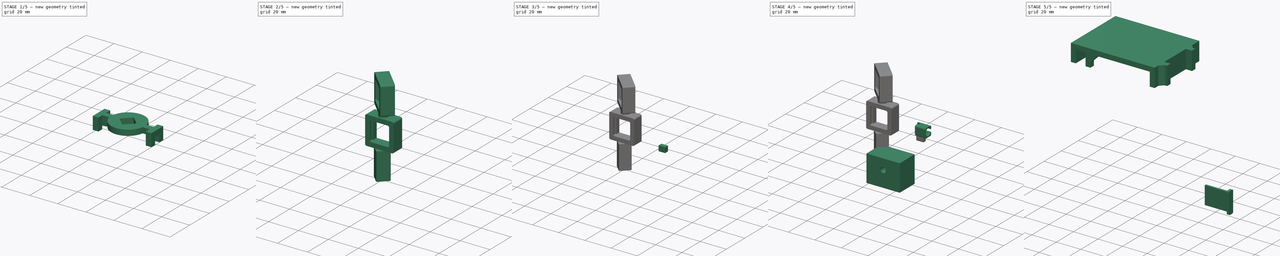
[diagram: build sequence overview — one tinted view per stage of 5, left to right]
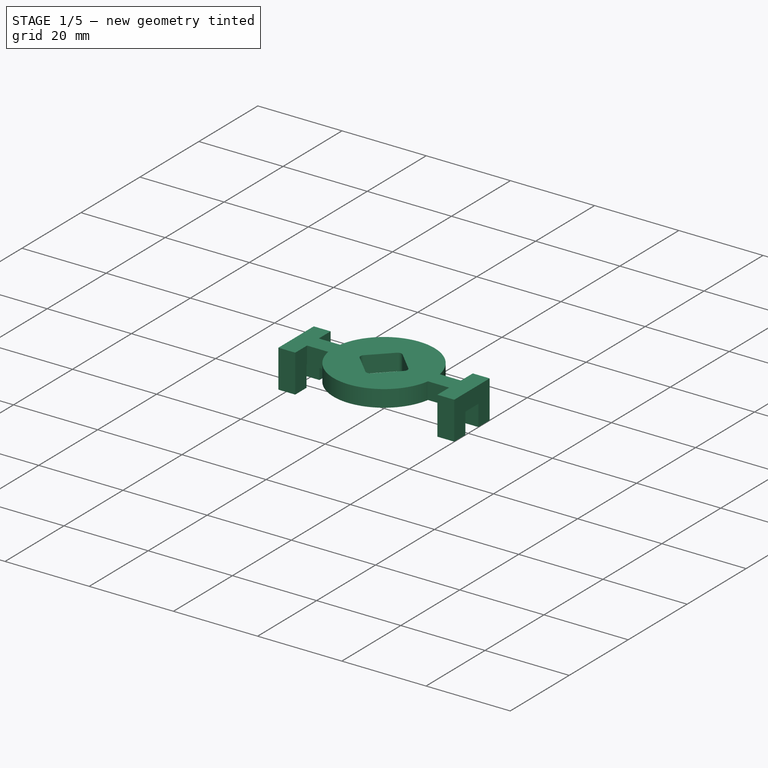
[diagram: stage 1 of 5 — iso view after this stage's code; geometry added in this stage tinted green]
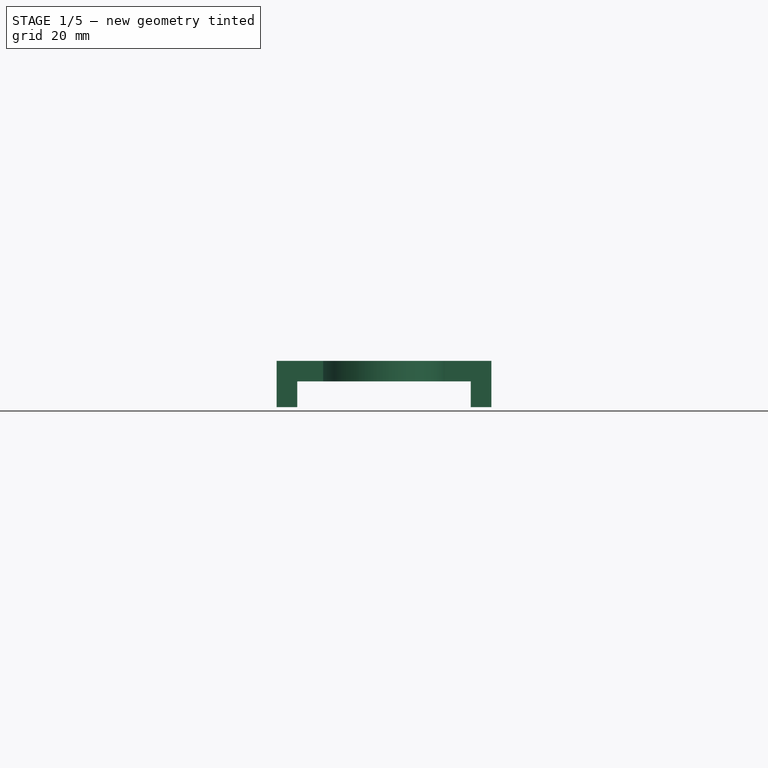
[diagram: stage 1 of 5 — front view after this stage's code; geometry added in this stage tinted green]
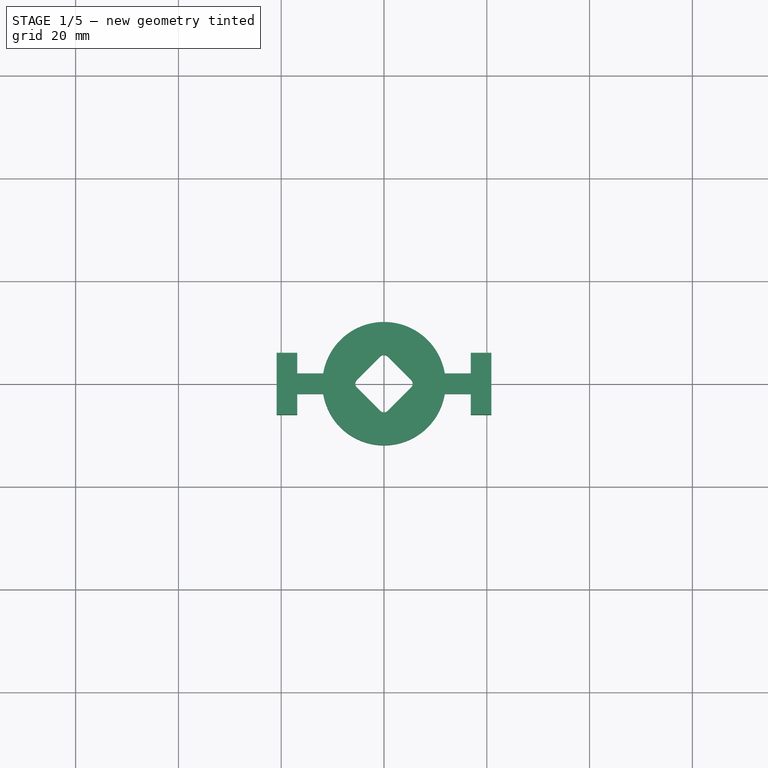
[diagram: stage 1 of 5 — top view after this stage's code; geometry added in this stage tinted green]
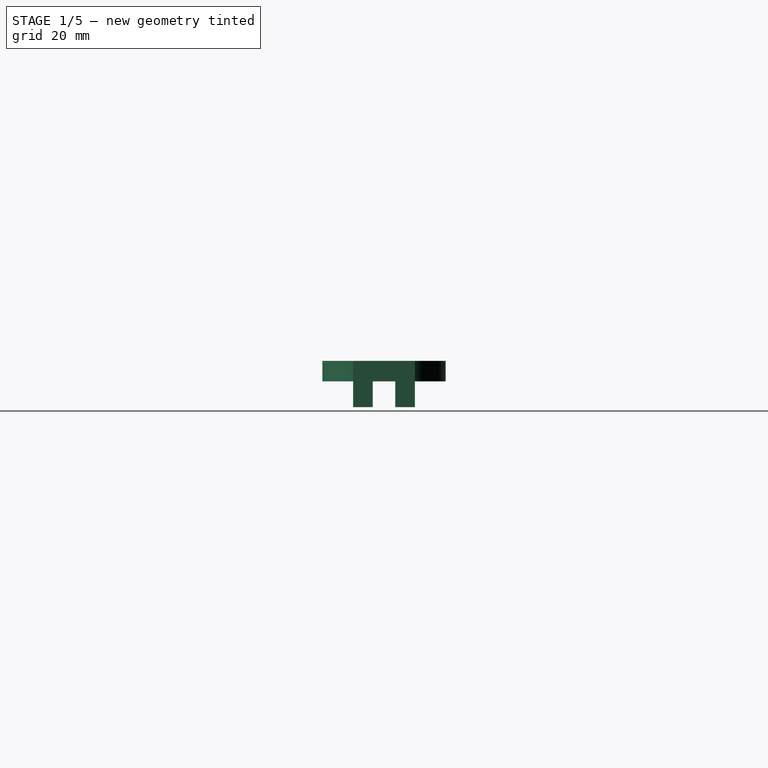
[diagram: stage 1 of 5 — right view after this stage's code; geometry added in this stage tinted green]
FCSTD DOCUMENT  (FreeCAD 1.2R20260113 (Git shallow))
Label: laser2
License: All rights reserved
LicenseURL: https://en.wikipedia.org/wiki/All_rights_reserved
objects: App::FeaturePython×54, Part::FeaturePython×53, Sketcher::SketchObject×48, PartDesign::Pad×32, App::Point×15, PartDesign::Body×15, PartDesign::Pocket×15, PartDesign::SubShapeBinder×12, App::Link×12, PartDesign::Mirrored×7, PartDesign::Fillet×6, PartDesign::MultiTransform×3, PartDesign::FeatureBase×2, PartDesign::Chamfer×2, App::VarSet×1, PartDesign::Boolean×1, Part::Cylinder×1, Part::MultiFuse×1
note: 367 computed .brp shape members not serialized (recipe doc carries the construction recipe); baked Part::Feature solids carry a one-line shape summary decoded from their .brp

FEATURE [App::Point] Origin003
  Role = Origin
FEATURE [App::VarSet] VarSet
  bearing_diameter = 26
  bearing_height = 8
  bearing_inner_diameter = 10
  magnet_diameter = 6.4
  magnet_distance = 3
  magnet_height = 3.2
  mirror_width = 15
  target_angle = 8
FEATURE [App::Point] Origin005  label="Origin006"
  Role = Origin
FEATURE [Sketcher::SketchObject] Sketch002
  ArcFitTolerance = 1e-06
  AttachmentSupport = -> [Origin004]
  ExternalTypes = [0]
  FullyConstrained = true
  MakeInternals = false
  MapMode = 5
  expr: Constraints[1] = VarSet.bearing_inner_diameter
  expr: Constraints[3] = VarSet.bearing_diameter
  sketch-geometry (2):
    g0: Circle CenterX=0 CenterY=0 CenterZ=0 NormalX=0 NormalY=0 NormalZ=1 AngleXU=0 Radius=5
    g1: Circle CenterX=0 CenterY=0 CenterZ=0 NormalX=0 NormalY=0 NormalZ=1 AngleXU=0 Radius=13
  constraints (4):
    c: Coincident(g0,g-1)
    c: Diameter(g0) = 10
    c: Coincident(g1,g0)
    c: Diameter(g1) = 26
FEATURE [PartDesign::Pad] Pad001
  Direction = (0,0,1)
  Length = 8
  Length2 = 10
  Profile = -> Sketch002
  ReferenceAxis = -> Sketch002 [N_Axis]
  Refine = true
  SideType = 0
  Suppressed = false
  Type = 0
  Type2 = 0
  expr: Length = VarSet.bearing_height
FEATURE [App::Point] Origin007  label="Origin009"
  Role = Origin
FEATURE [PartDesign::SubShapeBinder] Binder002
  BindCopyOnChange = 0
  BindMode = 0
  ClaimChildren = false
  Context = -> Body003 [Binder002.]
  Fuse = false
  MakeFace = true
  OffsetFill = false
  OffsetIntersection = false
  OffsetJoinType = 0
  OffsetOpenResult = false
  PartialLoad = false
  Refine = true
  Relative = true
  Support = -> [Body002]
  _Version = 2
FEATURE [Sketcher::SketchObject] Sketch006
  ArcFitTolerance = 1e-06
  AttachmentSupport = -> [Origin006]
  ExternalGeometry = -> [Binder002]
  ExternalTypes = [0]
  FullyConstrained = true
  MakeInternals = false
  MapMode = 5
  expr: Constraints[22] = VarSet.magnet_diameter + 2 mm
  expr: Constraints[26] = VarSet.magnet_distance
  expr: Constraints[44] = 2 * VarSet.magnet_height + 2 mm
  expr: Constraints[7] = 180 ° - VarSet.target_angle
  expr: Constraints[8] = 180 ° - VarSet.target_angle
  sketch-geometry (17):
    g0: Circle CenterX=0 CenterY=0 CenterZ=0 NormalX=0 NormalY=0 NormalZ=1 AngleXU=0 Radius=13
    g1: ArcOfCircle CenterX=0 CenterY=0 CenterZ=0 NormalX=0 NormalY=0 NormalZ=1 AngleXU=0 Radius=17 StartAngle=3.25951 EndAngle=6.28319
    g2: LineSegment StartX=-16.8819 StartY=2 StartZ=0 EndX=-42.8307 EndY=2 EndZ=0
    g3: LineSegment StartX=-16.8819 StartY=-2 StartZ=0 EndX=-42.8307 EndY=-2 EndZ=0
    g4: ArcOfCircle CenterX=0 CenterY=0 CenterZ=0 NormalX=0 NormalY=0 NormalZ=1 AngleXU=0 Radius=17 StartAngle=0 EndAngle=3.02367
    g5: LineSegment [constr] StartX=0 StartY=0 StartZ=0 EndX=-51.2307 EndY=7.2 EndZ=0
    g6: LineSegment [constr] StartX=0 StartY=0 StartZ=0 EndX=-51.2307 EndY=-7.2 EndZ=0
    g7: LineSegment StartX=-42.8307 StartY=2 StartZ=0 EndX=-42.8307 EndY=4.2 EndZ=0
    g8: LineSegment StartX=-42.8307 StartY=4.2 StartZ=0 EndX=-51.2307 EndY=4.2 EndZ=0
    g9: LineSegment StartX=-42.8307 StartY=-2 StartZ=0 EndX=-42.8307 EndY=-4.2 EndZ=0
    g10: LineSegment StartX=-42.8307 StartY=-4.2 StartZ=0 EndX=-51.2307 EndY=-4.2 EndZ=0
    g11: LineSegment [constr] StartX=-42.8307 StartY=-2 StartZ=0 EndX=-42.8307 EndY=2 EndZ=0
    g12: LineSegment [constr] StartX=-51.2307 StartY=4.2 StartZ=0 EndX=-51.2307 EndY=7.2 EndZ=0
    g13: LineSegment [constr] StartX=-16.8819 StartY=-2 StartZ=0 EndX=-16.8819 EndY=0 EndZ=0
    g14: LineSegment [constr] StartX=-16.8819 StartY=0 StartZ=0 EndX=-16.8819 EndY=2 EndZ=0
    g15: LineSegment [constr] StartX=-51.2307 StartY=-7.2 StartZ=0 EndX=-51.2307 EndY=-4.2 EndZ=0
    g16: LineSegment StartX=-51.2307 StartY=4.2 StartZ=0 EndX=-51.2307 EndY=-4.2 EndZ=0
  constraints (46):
    c: Coincident(g0,g-3)
    c: Coincident(g1,g0)
    c: Coincident(g2,g4)
    c: Coincident(g3,g1)
    c: Coincident(g1,g4)
    c: Distance(g4,g0) = 4
    c: Coincident(g5,g-1)
    c: Angle(g-1,g5) = 3.00197
    c: Angle(g6,g-1) = 3.00197
    c: Coincident(g6,g5)
    c: Coincident(g4,g1)
    c: PointOnObject(g1,g-1)
    c: Vertical(g7)
    c: Coincident(g8,g7)
    c: Horizontal(g8)
    c: Vertical(g9)
    c: Coincident(g10,g9)
    c: Horizontal(g10)
    c: Coincident(g11,g9)
    c: Coincident(g11,g7)
    c: Vertical(g11)
    c: Equal(g7,g9)
    c: Distance(g8,g8) = 8.4
    c: Coincident(g12,g8)
    c: Coincident(g12,g5)
    c: Vertical(g12)
    c: Distance(g12,g12) = 3
    c: Coincident(g13,g1)
    c: PointOnObject(g13,g-1)
    c: Vertical(g13)
    c: Coincident(g14,g13)
    c: Coincident(g14,g2)
    c: Vertical(g14)
    c: Horizontal(g2)
    c: Coincident(g7,g2)
    c: Horizontal(g3)
    c: Distance(g2,g3) = 4
    c: Coincident(g9,g3)
    c: Coincident(g15,g6)
    c: Coincident(g15,g10)
    c: Vertical(g15)
    c: Coincident(g16,g8)
    c: Coincident(g16,g10)
    c: Vertical(g16)
    c: DistanceY(g16,g16) = 8.4
    c: Equal(g-3,g0)
FEATURE [PartDesign::Pad] Pad004
  Direction = (0,0,1)
  Length = 11
  Length2 = 10
  Profile = -> Sketch006
  ReferenceAxis = -> Sketch006 [N_Axis]
  Refine = true
  SideType = 0
  Suppressed = false
  Type = 0
  Type2 = 0
  expr: Length = VarSet.bearing_height + 3 mm
FEATURE [PartDesign::Body] Body001  label="stator"
  AllowCompound = false
  Group = -> [Sketch001,Pad,Binder,Sketch020,Pad012]
  Origin = -> Origin002
  Tip = -> Pad012
FEATURE [Sketcher::SketchObject] Sketch023
  ArcFitTolerance = 1e-06
  AttachmentSupport = -> [Pad004]
  ExternalGeometry = -> [Pad004]
  ExternalTypes = [0]
  FullyConstrained = true
  MakeInternals = false
  MapMode = 5
  Placement = pos=(0,0,11) rot=(0,0,1;0rad)
  sketch-geometry (1):
    g0: Circle CenterX=0 CenterY=0 CenterZ=0 NormalX=0 NormalY=0 NormalZ=1 AngleXU=0 Radius=17
  constraints (2):
    c: Coincident(g0,g-3)
    c: PointOnObject(g-3,g0)
FEATURE [PartDesign::Pad] Pad014
  BaseFeature = -> Pad004
  Direction = (0,0,1)
  Length = 2
  Length2 = 10
  Profile = -> Sketch023
  ReferenceAxis = -> Sketch023 [N_Axis]
  Refine = true
  Reversed = true
  SideType = 0
  Suppressed = false
  Type = 0
  Type2 = 0
FEATURE [Sketcher::SketchObject] Sketch024
  ArcFitTolerance = 1e-06
  AttachmentSupport = -> [Pad014]
  ExternalGeometry = -> [Pad014]
  ExternalTypes = [0]
  FullyConstrained = true
  MakeInternals = false
  MapMode = 5
  Placement = pos=(0,0,9) rot=(1,0,0;3.14159rad)
  sketch-geometry (1):
    g0: Circle CenterX=0 CenterY=0 CenterZ=0 NormalX=0 NormalY=0 NormalZ=1 AngleXU=0 Radius=10
  constraints (2):
    c: Coincident(g0,g-3)
    c: Distance(g-3,g0) = 3
FEATURE [PartDesign::Pad] Pad015
  BaseFeature = -> Pad014
  Direction = (0,0,-1)
  Length = 1
  Length2 = 10
  Profile = -> Sketch024
  ReferenceAxis = -> Sketch024 [N_Axis]
  Refine = true
  SideType = 0
  Suppressed = false
  Type = 0
  Type2 = 0
FEATURE [PartDesign::Mirrored] Mirrored001
  BaseFeature = -> Pad015
  MirrorPlane = -> Sketch006 [V_Axis]
  Originals = -> [Pad004]
  Refine = true
  Suppressed = false
  TransformMode = 0
FEATURE [Sketcher::SketchObject] Sketch008
  ArcFitTolerance = 1e-06
  AttachmentSupport = -> [Mirrored001]
  ExternalGeometry = -> [Pad004]
  ExternalTypes = [0,0,0,0]
  FullyConstrained = true
  MakeInternals = false
  MapMode = 5
  Placement = pos=(0,-4.2,0) rot=(1,0,0;1.5708rad)
  expr: Constraints[2] = VarSet.magnet_diameter + 0.2 mm
  sketch-geometry (3):
    g0: LineSegment [constr] StartX=-51.2307 StartY=0 StartZ=0 EndX=-42.8307 EndY=11 EndZ=0
    g1: GeomPoint [constr] X=-47.0307 Y=5.5 Z=0
    g2: Circle CenterX=-47.0307 CenterY=5.5 CenterZ=0 NormalX=0 NormalY=0 NormalZ=1 AngleXU=0 Radius=3.3
  constraints (5):
    c: Symmetric(g0,g0,g1)
    c: Coincident(g2,g1)
    c: Diameter(g2) = 6.6
    c: Coincident(g0,g-6)
    c: Coincident(g0,g-4)
FEATURE [PartDesign::Pocket] Pocket001
  BaseFeature = -> Mirrored001
  Direction = (0,1,-2e-16)
  Length = 3.4
  Length2 = 5
  Profile = -> Sketch008
  ReferenceAxis = -> Sketch008 [N_Axis]
  Refine = true
  SideType = 0
  Suppressed = false
  Type = 0
  Type2 = 0
  expr: Length = VarSet.magnet_height + 0.2 mm
FEATURE [PartDesign::Mirrored] Mirror
  MirrorPlane = -> Sketch008 [V_Axis]
  Refine = true
  Suppressed = false
  TransformMode = 0
FEATURE [PartDesign::MultiTransform] MultiTransform
  BaseFeature = -> Pocket001
  Originals = -> [Pocket001]
  Refine = true
  Suppressed = false
  TransformMode = 0
  Transformations = -> [Mirror,Mirror001]
FEATURE [Sketcher::SketchObject] Sketch025
  ArcFitTolerance = 1e-06
  AttachmentSupport = -> [MultiTransform]
  ExternalGeometry = -> [MultiTransform]
  ExternalTypes = [0,0]
  FullyConstrained = true
  MakeInternals = false
  MapMode = 5
  Placement = pos=(0,0,0) rot=(1,0,0;3.14159rad)
  sketch-geometry (3):
    g0: GeomPoint X=-16.8819 Y=2 Z=0
    g1: ArcOfCircle CenterX=0 CenterY=-8.526e-13 CenterZ=0 NormalX=0 NormalY=0 NormalZ=1 AngleXU=0 Radius=17 StartAngle=3.02367 EndAngle=3.25951
    g2: LineSegment StartX=-42.8307 StartY=2 StartZ=0 EndX=-42.8307 EndY=-2 EndZ=0
  constraints (6):
    c: Coincident(g2,g-4)
    c: Coincident(g0,g-3)
    c: Coincident(g1,g-4)
    c: Coincident(g1,g0)
    c: Coincident(g2,g-3)
    c: Coincident(g1,g-1)
FEATURE [PartDesign::Pocket] Pocket002
  BaseFeature = -> MultiTransform
  Direction = (0,0,1)
  Length = 6
  Length2 = 5
  Profile = -> Sketch025
  ReferenceAxis = -> Sketch025 [N_Axis]
  Refine = true
  SideType = 0
  Suppressed = false
  Type = 0
  Type2 = 0
FEATURE [PartDesign::Mirrored] Mirrored
  BaseFeature = -> Pocket002
  MirrorPlane = -> Sketch025 [V_Axis]
  Originals = -> [Pocket002]
  Refine = true
  Suppressed = false
  TransformMode = 0
FEATURE [PartDesign::Fillet] Fillet
  Base = -> Mirrored [Edge34,Edge46,Edge41,Edge30]
  BaseFeature = -> Mirrored
  Radius = 1
  Refine = true
  SupportTransform = false
  Suppressed = false
  UseAllEdges = false
FEATURE [App::Point] Origin010  label="Origin013"
  Role = Origin
FEATURE [PartDesign::SubShapeBinder] Binder005
  BindCopyOnChange = 0
  BindMode = 0
  ClaimChildren = false
  Context = -> Body004 [Binder005.]
  Fuse = false
  MakeFace = true
  OffsetFill = false
  OffsetIntersection = false
  OffsetJoinType = 0
  OffsetOpenResult = false
  PartialLoad = false
  Refine = true
  Relative = true
  Support = -> [Body003]
  _Version = 2
FEATURE [Sketcher::SketchObject] Sketch028
  ArcFitTolerance = 1e-06
  AttachmentSupport = -> [Binder005]
  ExternalGeometry = -> [Binder005]
  ExternalTypes = [0,0,0,0,0,0,0]
  FullyConstrained = true
  MakeInternals = false
  MapMode = 5
  Placement = pos=(0,0,11) rot=(0,0,1;0rad)
  sketch-geometry (13):
    g0: LineSegment StartX=20.8819 StartY=-6 StartZ=0 EndX=20.8819 EndY=6 EndZ=0
    g1: LineSegment StartX=20.8819 StartY=6 StartZ=0 EndX=16.8819 EndY=6 EndZ=0
    g2: LineSegment StartX=16.8819 StartY=-6 StartZ=0 EndX=20.8819 EndY=-6 EndZ=0
    g3: GeomPoint [constr] X=17 Y=0 Z=0
    g4: LineSegment [constr] StartX=16.8819 StartY=6 StartZ=0 EndX=20.8819 EndY=-6 EndZ=0
    g5: GeomPoint [constr] X=18.8819 Y=0 Z=0
    g6: LineSegment StartX=16.8819 StartY=6 StartZ=0 EndX=16.8819 EndY=2 EndZ=0
    g7: ArcOfCircle CenterX=0 CenterY=0 CenterZ=0 NormalX=0 NormalY=0 NormalZ=1 AngleXU=0 Radius=12 StartAngle=0.167448 EndAngle=6.11574
    g8: LineSegment StartX=16.8819 StartY=2 StartZ=0 EndX=11.8322 EndY=2 EndZ=0
    g9: LineSegment StartX=16.8819 StartY=-2 StartZ=0 EndX=11.8322 EndY=-2 EndZ=0
    g10: LineSegment StartX=16.8819 StartY=-6 StartZ=0 EndX=16.8819 EndY=-2 EndZ=0
    g11: LineSegment StartX=16.8819 StartY=-2 StartZ=0 EndX=16.8819 EndY=-2 EndZ=0
    g12: LineSegment [constr] StartX=16.8819 StartY=2 StartZ=0 EndX=16.8819 EndY=-2 EndZ=0
  constraints (32):
    c: Coincident(g0,g1)
    c: Coincident(g2,g0)
    c: Vertical(g0)
    c: Horizontal(g1)
    c: Horizontal(g2)
    c: Distance(g1,g1) = 4
    c: PointOnObject(g3,g-1)
    c: PointOnObject(g3,g-8)
    c: Distance(g0,g-3) = 4
    c: Coincident(g4,g1)
    c: Coincident(g4,g0)
    c: Symmetric(g4,g4,g5)
    c: PointOnObject(g5,g-1)
    c: Coincident(g6,g1)
    c: Vertical(g6)
    c: Coincident(g7,g-9)
    c: Coincident(g8,g6)
    c: Horizontal(g8)
    c: Coincident(g9,g-9)
    c: Horizontal(g9)
    c: Coincident(g10,g2)
    c: PointOnObject(g10,g-4)
    c: Vertical(g10)
    c: Coincident(g11,g10)
    c: Coincident(g11,g9)
    c: Coincident(g12,g6)
    c: Coincident(g12,g10)
    c: Vertical(g12)
    c: Diameter(g7) = 24
    c: Coincident(g8,g7)
    c: Coincident(g9,g7)
    c: Coincident(g-8,g6)
FEATURE [PartDesign::Pad] Pad019
  Direction = (0,0,1)
  Length = 4
  Length2 = 10
  Profile = -> Sketch028
  ReferenceAxis = -> Sketch028 [N_Axis]
  Refine = true
  SideType = 0
  Suppressed = false
  Type = 0
  Type2 = 0
FEATURE [Sketcher::SketchObject] Sketch029
  ArcFitTolerance = 1e-06
  AttachmentSupport = -> [Pad019]
  ExternalGeometry = -> [Pad019,Binder005]
  ExternalTypes = [0,0,0,0,0,0,0]
  FullyConstrained = true
  MakeInternals = false
  MapMode = 5
  Placement = pos=(0,0,11) rot=(1,0,0;3.14159rad)
  sketch-geometry (8):
    g0: LineSegment StartX=16.8819 StartY=6 StartZ=0 EndX=16.8819 EndY=2.2 EndZ=0
    g1: LineSegment StartX=16.8819 StartY=2.2 StartZ=0 EndX=20.8819 EndY=2.2 EndZ=0
    g2: LineSegment StartX=20.8819 StartY=2.2 StartZ=0 EndX=20.8819 EndY=6 EndZ=0
    g3: LineSegment StartX=20.8819 StartY=6 StartZ=0 EndX=16.8819 EndY=6 EndZ=0
    g4: LineSegment StartX=16.8819 StartY=-6 StartZ=0 EndX=20.8819 EndY=-6 EndZ=0
    g5: LineSegment StartX=20.8819 StartY=-6 StartZ=0 EndX=20.8819 EndY=-2.2 EndZ=0
    g6: LineSegment StartX=20.8819 StartY=-2.2 StartZ=0 EndX=16.8819 EndY=-2.2 EndZ=0
    g7: LineSegment StartX=16.8819 StartY=-2.2 StartZ=0 EndX=16.8819 EndY=-6 EndZ=0
  constraints (22):
    c: PointOnObject(g0,g-5)
    c: PointOnObject(g0,g-5)
    c: Coincident(g1,g0)
    c: PointOnObject(g1,g-3)
    c: Horizontal(g1)
    c: Coincident(g2,g1)
    c: Coincident(g2,g-4)
    c: Coincident(g3,g2)
    c: Coincident(g3,g0)
    c: Horizontal(g3)
    c: Distance(g-8,g1) = 0.2
    c: Coincident(g4,g5)
    c: Coincident(g5,g6)
    c: Coincident(g6,g7)
    c: Coincident(g7,g4)
    c: Horizontal(g4)
    c: Horizontal(g6)
    c: Vertical(g5)
    c: Vertical(g7)
    c: Coincident(g4,g-9)
    c: PointOnObject(g5,g-3)
    c: Distance(g-7,g6) = 0.2
FEATURE [PartDesign::Pad] Pad020
  BaseFeature = -> Pad019
  Direction = (0,0,-1)
  Length = 10
  Length2 = 10
  Profile = -> Sketch029
  ReferenceAxis = -> Sketch029 [N_Axis]
  Refine = true
  SideType = 0
  Suppressed = false
  Type = 3
  Type2 = 0
  UpToFace = -> Binder005 [Face13]
FEATURE [PartDesign::Mirrored] Mirror004
  MirrorPlane = -> Sketch029 [V_Axis]
  Refine = true
  Suppressed = false
  TransformMode = 0
FEATURE [PartDesign::MultiTransform] MultiTransform002
  BaseFeature = -> Pad020
  Originals = -> [Pad020,Pad019]
  Refine = true
  Suppressed = false
  TransformMode = 0
  Transformations = -> [Mirror004]
FEATURE [Sketcher::SketchObject] Sketch030
  ArcFitTolerance = 1e-06
  AttachmentSupport = -> [MultiTransform002]
  ExternalTypes = [0]
  FullyConstrained = true
  MakeInternals = false
  MapMode = 5
  Placement = pos=(0,0,15) rot=(0,0,1;0rad)
  sketch-geometry (12):
    g0: LineSegment StartX=-0.707107 StartY=5.29289 StartZ=0 EndX=-5.29289 EndY=0.707107 EndZ=0
    g1: LineSegment StartX=-5.29289 StartY=-0.707107 StartZ=0 EndX=-0.707107 EndY=-5.29289 EndZ=0
    g2: LineSegment StartX=0.707107 StartY=-5.29289 StartZ=0 EndX=5.29289 EndY=-0.707107 EndZ=0
    g3: LineSegment StartX=5.29289 StartY=0.707107 StartZ=0 EndX=0.707107 EndY=5.29289 EndZ=0
    g4: ArcOfCircle CenterX=-3e-16 CenterY=4.58579 CenterZ=0 NormalX=0 NormalY=0 NormalZ=1 AngleXU=0 Radius=1 StartAngle=0.785398 EndAngle=2.35619
    g5: GeomPoint [constr] X=0 Y=6 Z=0
    g6: ArcOfCircle CenterX=-4.58579 CenterY=6e-16 CenterZ=0 NormalX=0 NormalY=0 NormalZ=1 AngleXU=0 Radius=1 StartAngle=2.35619 EndAngle=3.92699
    g7: GeomPoint [constr] X=-6 Y=0 Z=0
    g8: ArcOfCircle CenterX=-3e-16 CenterY=-4.58579 CenterZ=0 NormalX=0 NormalY=0 NormalZ=1 AngleXU=0 Radius=1 StartAngle=3.92699 EndAngle=5.49779
    g9: GeomPoint [constr] X=0 Y=-6 Z=0
    g10: ArcOfCircle CenterX=4.58579 CenterY=-3e-16 CenterZ=0 NormalX=0 NormalY=0 NormalZ=1 AngleXU=0 Radius=1 StartAngle=5.49779 EndAngle=7.06858
    g11: GeomPoint [constr] X=6 Y=0 Z=0
  constraints (26):
    c: PointOnObject(g5,g-2)
    c: PointOnObject(g7,g-1)
    c: Symmetric(g9,g5,g-1)
    c: Symmetric(g7,g11,g-1)
    c: Distance(g-1,g11) = 6
    c: Distance(g9,g-1) = 6
    c: PointOnObject(g5,g0)
    c: PointOnObject(g5,g3)
    c: Tangent(g0,g4) = -1.5708
    c: Tangent(g3,g4) = -1.5708
    c: PointOnObject(g7,g0)
    c: PointOnObject(g7,g1)
    c: Tangent(g0,g6) = -1.5708
    c: Tangent(g1,g6) = -1.5708
    c: PointOnObject(g9,g1)
    c: PointOnObject(g9,g2)
    c: Tangent(g1,g8) = -1.5708
    c: Tangent(g2,g8) = -1.5708
    c: PointOnObject(g11,g2)
    c: PointOnObject(g11,g3)
    c: Tangent(g2,g10) = -1.5708
    c: Tangent(g3,g10) = -1.5708
    c: Distance(g10,g2) = 1
    c: Distance(g1,g6) = 1
    c: Distance(g1,g8) = 1
    c: Distance(g4,g3) = 1
FEATURE [PartDesign::Pocket] Pocket
  BaseFeature = -> MultiTransform002
  Direction = (0,0,-1)
  Length = 5
  Length2 = 5
  Profile = -> Sketch030
  ReferenceAxis = -> Sketch030 [N_Axis]
  Refine = true
  SideType = 0
  Suppressed = false
  Type = 2
  Type2 = 0
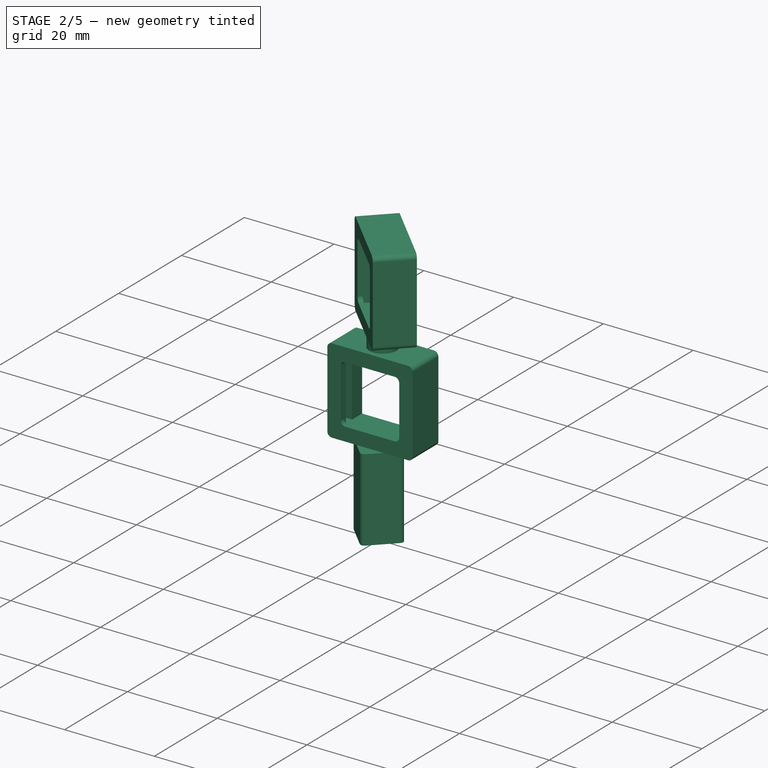
[diagram: stage 2 of 5 — iso view after this stage's code; geometry added in this stage tinted green]
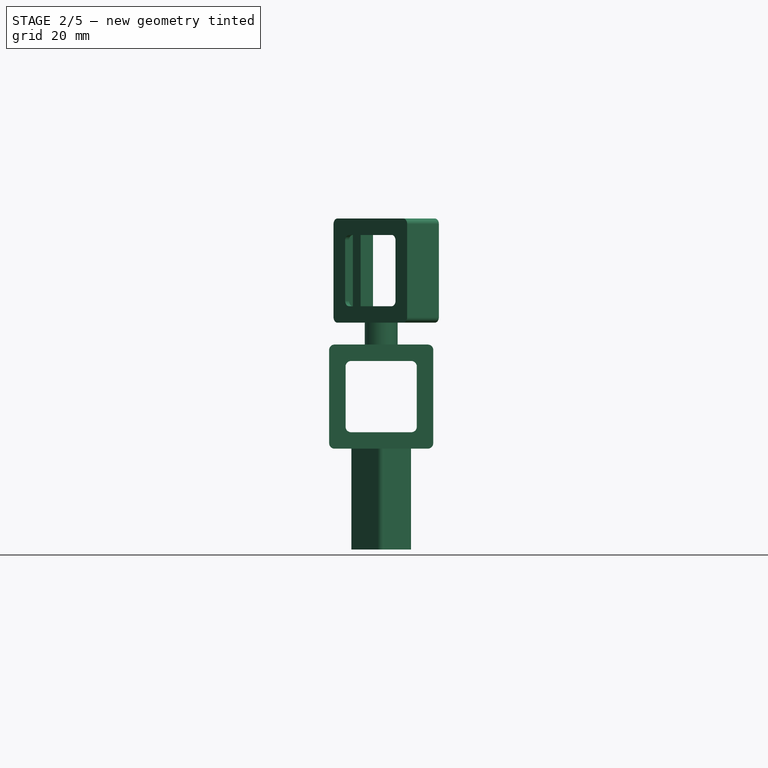
[diagram: stage 2 of 5 — front view after this stage's code; geometry added in this stage tinted green]
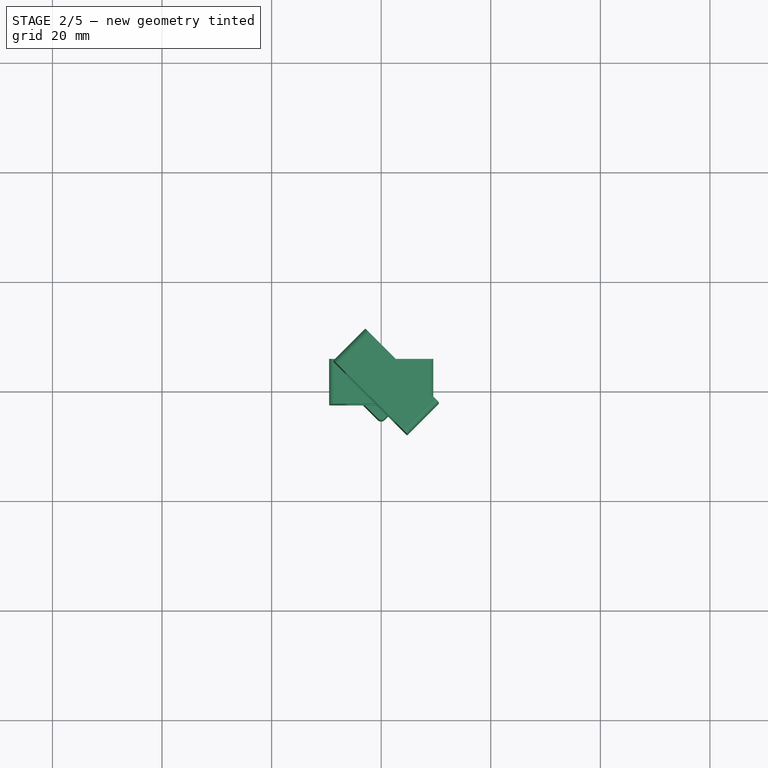
[diagram: stage 2 of 5 — top view after this stage's code; geometry added in this stage tinted green]
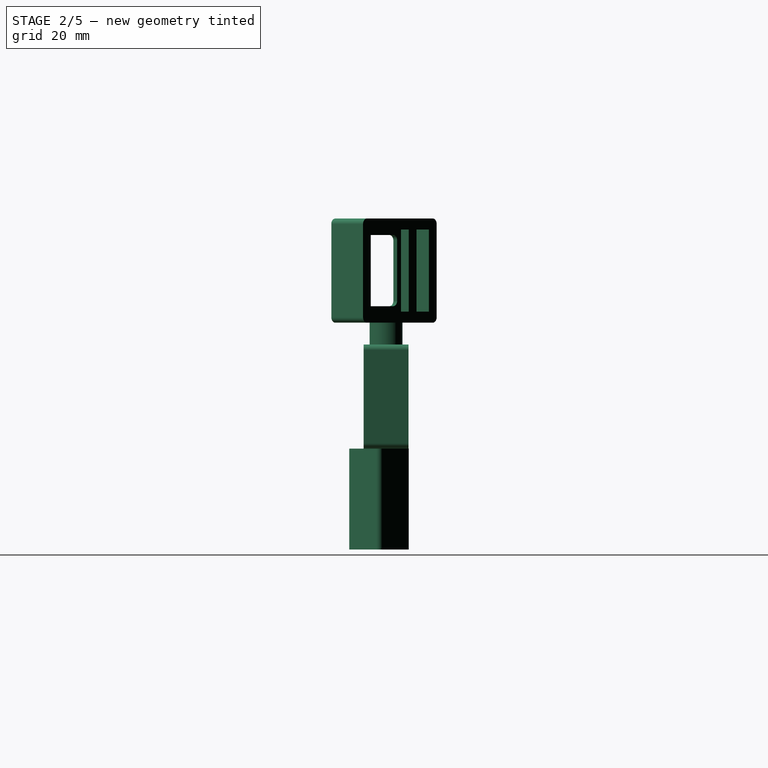
[diagram: stage 2 of 5 — right view after this stage's code; geometry added in this stage tinted green]
FEATURE [App::Point] Origin012  label="Origin016"
  Role = Origin
FEATURE [PartDesign::SubShapeBinder] Binder006
  BindCopyOnChange = 0
  BindMode = 0
  ClaimChildren = false
  Context = -> Body005 [Binder006.]
  Fuse = false
  MakeFace = true
  OffsetFill = false
  OffsetIntersection = false
  OffsetJoinType = 0
  OffsetOpenResult = false
  PartialLoad = false
  Refine = true
  Relative = true
  Support = -> [Body004]
  _Version = 2
FEATURE [Sketcher::SketchObject] Sketch031
  ArcFitTolerance = 1e-06
  AttachmentSupport = -> [Binder006]
  ExternalGeometry = -> [Binder006]
  ExternalTypes = [0,0,0,0,0,0,0,0]
  FullyConstrained = true
  MakeInternals = false
  MapMode = 5
  Placement = pos=(0,0,11) rot=(1,0,0;3.14159rad)
  sketch-geometry (16):
    g0: ArcOfCircle CenterX=-4.58579 CenterY=1.3e-15 CenterZ=0 NormalX=0 NormalY=0 NormalZ=1 AngleXU=-1.5708 Radius=0.85 StartAngle=3.92699 EndAngle=5.49779
    g1: LineSegment StartX=-5.18683 StartY=-0.601041 StartZ=0 EndX=-0.601041 EndY=-5.18683 EndZ=0
    g2: ArcOfCircle CenterX=-1.2e-15 CenterY=-4.58579 CenterZ=0 NormalX=0 NormalY=0 NormalZ=1 AngleXU=-1.5708 Radius=0.85 StartAngle=5.49779 EndAngle=7.06858
    g3: LineSegment StartX=0.601041 StartY=-5.18683 StartZ=0 EndX=5.18683 EndY=-0.601041 EndZ=0
    g4: ArcOfCircle CenterX=4.58579 CenterY=-7e-16 CenterZ=0 NormalX=0 NormalY=0 NormalZ=1 AngleXU=-1.5708 Radius=0.85 StartAngle=0.785398 EndAngle=2.35619
    g5: LineSegment StartX=5.18683 StartY=0.601041 StartZ=0 EndX=0.601041 EndY=5.18683 EndZ=0
    g6: ArcOfCircle CenterX=3e-16 CenterY=4.58579 CenterZ=0 NormalX=0 NormalY=0 NormalZ=1 AngleXU=-1.5708 Radius=0.85 StartAngle=2.35619 EndAngle=3.92699
    g7: LineSegment StartX=-0.601041 StartY=5.18683 StartZ=0 EndX=-5.18683 EndY=0.601041 EndZ=0
    g8: LineSegment [constr] StartX=5.18683 StartY=0.601041 StartZ=0 EndX=4.58579 EndY=-7e-16 EndZ=0
    g9: LineSegment [constr] StartX=4.58579 StartY=-7e-16 StartZ=0 EndX=5.18683 EndY=-0.601041 EndZ=0
    g10: LineSegment [constr] StartX=0.601041 StartY=5.18683 StartZ=0 EndX=3e-16 EndY=4.58579 EndZ=0
    g11: LineSegment [constr] StartX=3e-16 StartY=4.58579 StartZ=0 EndX=-0.601041 EndY=5.18683 EndZ=0
    g12: LineSegment [constr] StartX=-5.18683 StartY=0.601041 StartZ=0 EndX=-4.58579 EndY=1.3e-15 EndZ=0
    g13: LineSegment [constr] StartX=-4.58579 StartY=1.3e-15 StartZ=0 EndX=-5.18683 EndY=-0.601041 EndZ=0
    g14: LineSegment [constr] StartX=-0.601041 StartY=-5.18683 StartZ=0 EndX=-1.1e-15 EndY=-4.58579 EndZ=0
    g15: LineSegment [constr] StartX=-1.2e-15 StartY=-4.58579 StartZ=0 EndX=0.601041 EndY=-5.18683 EndZ=0
  constraints (33):
    c: Tangent(g0,g1) = -1.5708
    c: Tangent(g0,g7) = -1.5708
    c: Tangent(g1,g2) = -1.5708
    c: Tangent(g2,g3) = -1.5708
    c: Tangent(g3,g4) = -1.5708
    c: Tangent(g4,g5) = -1.5708
    c: Tangent(g5,g6) = -1.5708
    c: Tangent(g6,g7) = -1.5708
    c: Coincident(g8,g4)
    c: Coincident(g8,g4)
    c: Coincident(g9,g4)
    c: Coincident(g9,g3)
    c: Perpendicular(g8,g9)
    c: Coincident(g10,g5)
    c: Coincident(g10,g6)
    c: Coincident(g11,g6)
    c: Coincident(g11,g6)
    c: Distance(g11,g11) = 0.85
    c: Perpendicular(g10,g11)
    c: Coincident(g12,g0)
    c: Coincident(g12,g0)
    c: Coincident(g13,g0)
    c: Coincident(g13,g0)
    c: Perpendicular(g12,g13)
    c: Distance(g12,g12) = 0.85
    c: Coincident(g14,g1)
    c: Coincident(g14,g2)
    c: Coincident(g15,g2)
    c: Coincident(g15,g2)
    c: Distance(g15,g15) = 0.85
    c: Coincident(g0,g-10)
    c: Coincident(g6,g-5)
    c: Coincident(g4,g-6)
FEATURE [PartDesign::Pad] Pad021
  Direction = (0,0,-1)
  Length = 18.4
  Length2 = 10
  Offset = 16
  Profile = -> Sketch031
  ReferenceAxis = -> Sketch031 [N_Axis]
  Refine = true
  Reversed = true
  SideType = 0
  Suppressed = false
  Type = 0
  Type2 = 0
FEATURE [Sketcher::SketchObject] Sketch039
  ArcFitTolerance = 1e-06
  AttachmentSupport = -> [Pad026]
  ExternalGeometry = -> [Pad026]
  ExternalTypes = [0,0,0,0,0,0,0,0]
  FullyConstrained = true
  MakeInternals = false
  MapMode = 5
  Placement = pos=(0,0,-4) rot=(0,0,1;0rad)
  sketch-geometry (8):
    g0: LineSegment StartX=40.8307 StartY=-16 StartZ=0 EndX=40.8307 EndY=-12 EndZ=0
    g1: LineSegment StartX=40.8307 StartY=-12 StartZ=0 EndX=26.8307 EndY=-12 EndZ=0
    g2: LineSegment StartX=26.8307 StartY=-12 StartZ=0 EndX=26.8307 EndY=-16 EndZ=0
    g3: LineSegment StartX=26.8307 StartY=-16 StartZ=0 EndX=40.8307 EndY=-16 EndZ=0
    g4: LineSegment StartX=26.8307 StartY=12 StartZ=0 EndX=26.8307 EndY=16 EndZ=0
    g5: LineSegment StartX=26.8307 StartY=16 StartZ=0 EndX=40.8307 EndY=16 EndZ=0
    g6: LineSegment StartX=40.8307 StartY=16 StartZ=0 EndX=40.8307 EndY=12 EndZ=0
    g7: LineSegment StartX=40.8307 StartY=12 StartZ=0 EndX=26.8307 EndY=12 EndZ=0
  constraints (20):
    c: Coincident(g0,g1)
    c: Coincident(g1,g2)
    c: Coincident(g2,g3)
    c: Coincident(g3,g0)
    c: Vertical(g0)
    c: Vertical(g2)
    c: Horizontal(g1)
    c: Coincident(g4,g5)
    c: Coincident(g5,g6)
    c: Coincident(g6,g7)
    c: Coincident(g7,g4)
    c: Vertical(g4)
    c: Vertical(g6)
    c: Horizontal(g7)
    c: Equal(g4,g2)
    c: Distance(g2,g2) = 4
    c: Coincident(g4,g-4)
    c: Coincident(g5,g-5)
    c: Coincident(g2,g-10)
    c: Coincident(g0,g-10)
FEATURE [App::Point] Origin020  label="Origin027"
  Role = Origin
FEATURE [Sketcher::SketchObject] Sketch044
  ArcFitTolerance = 1e-06
  AttachmentSupport = -> [Origin019]
  ExternalTypes = [0]
  FullyConstrained = true
  MakeInternals = false
  MapMode = 5
  expr: Constraints[14] = 1 mm + 1.8 mm
  expr: Constraints[8] = VarSet.mirror_width + 2 * 2 mm
  sketch-geometry (7):
    g0: LineSegment StartX=-9.5 StartY=2.8 StartZ=0 EndX=-9.5 EndY=-5.38579 EndZ=0
    g1: LineSegment StartX=-9.5 StartY=-5.38579 StartZ=0 EndX=9.5 EndY=-5.38579 EndZ=0
    g2: LineSegment StartX=9.5 StartY=-5.38579 StartZ=0 EndX=9.5 EndY=2.8 EndZ=0
    g3: LineSegment StartX=9.5 StartY=2.8 StartZ=0 EndX=-9.5 EndY=2.8 EndZ=0
    g4: LineSegment [constr] StartX=-9.5 StartY=-5.38579 StartZ=0 EndX=0 EndY=0 EndZ=0
    g5: LineSegment [constr] StartX=0 StartY=0 StartZ=0 EndX=9.5 EndY=-5.38579 EndZ=0
    g6: GeomPoint [constr] X=0 Y=-5.38579 Z=0
  constraints (18):
    c: Coincident(g0,g1)
    c: Coincident(g1,g2)
    c: Coincident(g2,g3)
    c: Coincident(g3,g0)
    c: Vertical(g0)
    c: Vertical(g2)
    c: Horizontal(g1)
    c: Horizontal(g3)
    c: Distance(g3,g3) = 19
    c: Coincident(g4,g0)
    c: Coincident(g4,g-1)
    c: Coincident(g5,g4)
    c: Coincident(g5,g1)
    c: Equal(g5,g4)
    c: Distance(g4,g3) = 2.8
    c: PointOnObject(g6,g-3)
    c: PointOnObject(g6,g1)
    c: PointOnObject(g6,g-2)
FEATURE [PartDesign::Pad] Pad031
  Direction = (0,0,1)
  Length = 19
  Length2 = 10
  Profile = -> Sketch044
  ReferenceAxis = -> Sketch044 [N_Axis]
  Refine = true
  SideType = 0
  Suppressed = false
  Type = 0
  Type2 = 0
  expr: Length = 2 * 2 mm + VarSet.mirror_width
FEATURE [Sketcher::SketchObject] Sketch045
  ArcFitTolerance = 1e-06
  AttachmentSupport = -> [Pad031]
  ExternalGeometry = -> [Pad031]
  ExternalTypes = [0,0,0,0]
  FullyConstrained = true
  MakeInternals = false
  MapMode = 5
  Placement = pos=(0,-5.38579,0) rot=(1,0,0;1.5708rad)
  sketch-geometry (10):
    g0: LineSegment StartX=-7.5 StartY=17 StartZ=0 EndX=-7.5 EndY=2 EndZ=0
    g1: LineSegment StartX=-7.5 StartY=2 StartZ=0 EndX=7.5 EndY=2 EndZ=0
    g2: LineSegment StartX=7.5 StartY=2 StartZ=0 EndX=7.5 EndY=17 EndZ=0
    g3: LineSegment StartX=7.5 StartY=17 StartZ=0 EndX=-7.5 EndY=17 EndZ=0
    g4: LineSegment StartX=-6.5 StartY=16 StartZ=0 EndX=-6.5 EndY=3 EndZ=0
    g5: LineSegment StartX=-6.5 StartY=3 StartZ=0 EndX=6.5 EndY=3 EndZ=0
    g6: LineSegment StartX=6.5 StartY=3 StartZ=0 EndX=6.5 EndY=16 EndZ=0
    g7: LineSegment StartX=6.5 StartY=16 StartZ=0 EndX=-6.5 EndY=16 EndZ=0
    g8: LineSegment [constr] StartX=9.5 StartY=0 StartZ=0 EndX=-9.5 EndY=19 EndZ=0
    g9: GeomPoint [constr] X=2.45925e-11 Y=9.5 Z=0
  constraints (25):
    c: Coincident(g0,g1)
    c: Coincident(g1,g2)
    c: Coincident(g2,g3)
    c: Coincident(g3,g0)
    c: Vertical(g0)
    c: Vertical(g2)
    c: Horizontal(g1)
    c: Horizontal(g3)
    c: Coincident(g4,g5)
    c: Coincident(g5,g6)
    c: Coincident(g6,g7)
    c: Coincident(g7,g4)
    c: Vertical(g4)
    c: Vertical(g6)
    c: Horizontal(g5)
    c: Horizontal(g7)
    c: Coincident(g8,g-6)
    c: Coincident(g8,g-4)
    c: Symmetric(g8,g8,g9)
    c: Symmetric(g0,g1,g9)
    c: Symmetric(g4,g6,g9)
    c: Distance(g4,g0) = 1
    c: Distance(g-4,g0) = 2
    c: PointOnObject(g0,g8)
    c: PointOnObject(g4,g8)
FEATURE [PartDesign::Pocket] Pocket007
  BaseFeature = -> Pad031
  Direction = (0,1,-2e-16)
  Length = 7.2
  Length2 = 5
  Profile = -> Sketch045 [Edge1,Edge4,Edge3,Edge2]
  ReferenceAxis = -> Sketch045 [N_Axis]
  Refine = true
  SideType = 0
  Suppressed = false
  Type = 0
  Type2 = 0
  expr: Length = 5 mm + 2.2 mm
FEATURE [PartDesign::Pocket] Pocket008
  BaseFeature = -> Pocket007
  Direction = (0,1,-2e-16)
  Length = 5
  Length2 = 5
  Profile = -> Sketch045 [Edge5,Edge8,Edge7,Edge6]
  ReferenceAxis = -> Sketch045 [N_Axis]
  Refine = true
  SideType = 0
  Suppressed = false
  Type = 1
  Type2 = 0
FEATURE [Sketcher::SketchObject] Sketch046
  ArcFitTolerance = 1e-06
  AttachmentSupport = -> [Pocket008]
  ExternalGeometry = -> [Pocket008]
  ExternalTypes = [0]
  FullyConstrained = true
  MakeInternals = false
  MapMode = 5
  Placement = pos=(9.5,0,0) rot=(0.57735,0.57735,0.57735;2.0944rad)
  sketch-geometry (6):
    g0: LineSegment StartX=-0.185786 StartY=17 StartZ=0 EndX=-2.18579 EndY=17 EndZ=0
    g1: LineSegment StartX=-2.18579 StartY=17 StartZ=0 EndX=-2.18579 EndY=2 EndZ=0
    g2: LineSegment StartX=-2.18579 StartY=2 StartZ=0 EndX=-0.185786 EndY=2 EndZ=0
    g3: LineSegment StartX=-0.185786 StartY=17 StartZ=0 EndX=-0.185786 EndY=2 EndZ=0
    g4: LineSegment [constr] StartX=-0.185786 StartY=17 StartZ=0 EndX=1.81421 EndY=17 EndZ=0
    g5: LineSegment [constr] StartX=-0.185786 StartY=2 StartZ=0 EndX=1.81421 EndY=2 EndZ=0
  constraints (16):
    c: Coincident(g0,g1)
    c: Coincident(g1,g2)
    c: Horizontal(g0)
    c: Horizontal(g2)
    c: Vertical(g1)
    c: Distance(g2,g2) = 2
    c: Coincident(g3,g0)
    c: Coincident(g3,g2)
    c: Vertical(g3)
    c: Coincident(g4,g0)
    c: Coincident(g5,g2)
    c: Horizontal(g5)
    c: Horizontal(g4)
    c: Distance(g5,g5) = 2
    c: Coincident(g5,g-3)
    c: Coincident(g4,g-3)
FEATURE [PartDesign::Pocket] Pocket009
  BaseFeature = -> Pocket008
  Direction = (-1,0,0)
  Length = 5
  Length2 = 5
  Profile = -> Sketch046
  ReferenceAxis = -> Sketch046 [N_Axis]
  Refine = true
  SideType = 0
  Suppressed = false
  Type = 2
  Type2 = 0
FEATURE [PartDesign::Fillet] Fillet006
  Base = -> Pocket009 [Edge4,Edge20,Edge19,Edge3,Edge26,Edge27,Edge31,Edge29]
  BaseFeature = -> Pocket009
  Radius = 1
  Refine = true
  SupportTransform = false
  Suppressed = false
  UseAllEdges = false
FEATURE [PartDesign::Body] Body008  label="mirror"
  AllowCompound = false
  Group = -> [Sketch044,Sketch045,Sketch046,Pad031,Pocket007,Pocket008,Pocket009,Fillet006]
  Origin = -> Origin019
  Tip = -> Fillet006
FEATURE [Part::FeaturePython] Clone002  label="mirror_base001"  # Draft clone (typed FeaturePython)
  AttacherType = Attacher::AttachEngine3D
  ForceCompound = false
  Fuse = false
  Objects = -> [Body005]
  Placement = pos=(0,0,0) rot=(0,0,1;-1.5708rad)
  Scale = (1,1,1)
FEATURE [Part::FeaturePython] Clone003  label="mirror001"  # Draft clone (typed FeaturePython)
  AttacherType = Attacher::AttachEngine3D
  AttachmentSupport = -> [Body005]
  ForceCompound = false
  Fuse = false
  MapMode = 5
  Objects = -> [Body008]
  Placement = pos=(0,0,29.4) rot=(0,0,-1;1.5708rad)
  Scale = (1,1,1)
FEATURE [Part::Cylinder] Cylinder
  Angle = 360
  AttacherType = Attacher::AttachEngine3D
  AttachmentSupport = -> [Clone003]
  FirstAngle = 0
  Height = 5
  MapMode = 45
  Placement = pos=(-1.29289,-2.4592e-11,48.4) rot=(0,0,1;0rad)
  Radius = 3
  SecondAngle = 0
FEATURE [Part::FeaturePython] Clone004  label="mirror004"  # Draft clone (typed FeaturePython)
  AttacherType = Attacher::AttachEngine3D
  AttachmentOffset = pos=(0,0,4) rot=(0,0,1;-0.785398rad)
  AttachmentSupport = -> [Clone003]
  ForceCompound = false
  Fuse = false
  MapMode = 5
  Objects = -> [Clone003]
  Placement = pos=(0,0,52.4) rot=(0,0,1;3.92699rad)
  Scale = (1,1,1)
FEATURE [Part::MultiFuse] Fusion  label="mirrors"
  Placement = pos=(0,0,0) rot=(0,0,1;4.71239rad)
  Refine = true
  Shapes = -> [Clone004,Clone002,Clone003,Cylinder]
FEATURE [App::Link] Link014  label="laser_diode001"
  LinkPlacement = pos=(-12.1314,-42.3686,141.531) rot=(0.57735,0.57735,0.57735;2.0944rad)
  LinkedObject = -> Body013
  Placement = pos=(-12.1314,-42.3686,141.531) rot=(0.57735,0.57735,0.57735;2.0944rad)
FEATURE [App::Point] Origin032  label="Origin042"
  Role = Origin
FEATURE [PartDesign::FeatureBase] Clone005
  BaseFeature = -> Fusion
  Placement = pos=(0,0,0) rot=(0,0,1;4.71239rad)
  Suppressed = false
FEATURE [Sketcher::SketchObject] Sketch070
  ArcFitTolerance = 1e-06
  AttachmentSupport = -> [Pocket]
  ExternalGeometry = -> [Pocket]
  ExternalTypes = [0,0,0,0,0,0,0,0]
  FullyConstrained = true
  MakeInternals = false
  MapMode = 5
  Placement = pos=(0,0,15) rot=(0,0,1;0rad)
  sketch-geometry (20):
    g0: ArcOfCircle CenterX=-4.58579 CenterY=7e-16 CenterZ=0 NormalX=0 NormalY=0 NormalZ=1 AngleXU=0 Radius=2 StartAngle=2.35619 EndAngle=3.92699
    g1: LineSegment StartX=-6 StartY=-1.41421 StartZ=0 EndX=-1.41421 EndY=-6 EndZ=0
    g2: ArcOfCircle CenterX=-6e-16 CenterY=-4.58579 CenterZ=0 NormalX=0 NormalY=0 NormalZ=1 AngleXU=0 Radius=2 StartAngle=3.92699 EndAngle=5.49779
    g3: LineSegment StartX=1.41421 StartY=-6 StartZ=0 EndX=6 EndY=-1.41421 EndZ=0
    g4: ArcOfCircle CenterX=4.58579 CenterY=0 CenterZ=0 NormalX=0 NormalY=0 NormalZ=1 AngleXU=0 Radius=2 StartAngle=5.49779 EndAngle=7.06858
    g5: LineSegment StartX=6 StartY=1.41421 StartZ=0 EndX=1.41421 EndY=6 EndZ=0
    g6: ArcOfCircle CenterX=-2.1e-15 CenterY=4.58579 CenterZ=0 NormalX=0 NormalY=0 NormalZ=1 AngleXU=0 Radius=2 StartAngle=0.785398 EndAngle=2.35619
    g7: LineSegment StartX=-1.41421 StartY=6 StartZ=0 EndX=-6 EndY=1.41421 EndZ=0
    g8: LineSegment [constr] StartX=-0.707107 StartY=5.29289 StartZ=0 EndX=-2.1e-15 EndY=4.58579 EndZ=0
    g9: LineSegment [constr] StartX=-2.1e-15 StartY=4.58579 StartZ=0 EndX=0.707107 EndY=5.29289 EndZ=0
    g10: LineSegment [constr] StartX=5.29289 StartY=0.707107 StartZ=0 EndX=4.58579 EndY=0 EndZ=0
    g11: LineSegment [constr] StartX=5.29289 StartY=-0.707107 StartZ=0 EndX=4.58579 EndY=0 EndZ=0
    g12: LineSegment [constr] StartX=0.707107 StartY=-5.29289 StartZ=0 EndX=-6e-16 EndY=-4.58579 EndZ=0
    g13: LineSegment [constr] StartX=-6e-16 StartY=-4.58579 StartZ=0 EndX=-0.707107 EndY=-5.29289 EndZ=0
    g14: LineSegment [constr] StartX=-5.29289 StartY=-0.707107 StartZ=0 EndX=-4.58579 EndY=7e-16 EndZ=0
    g15: LineSegment [constr] StartX=-4.58579 StartY=7e-16 StartZ=0 EndX=-5.29289 EndY=0.707107 EndZ=0
    g16: LineSegment [constr] StartX=5.29289 StartY=0.707107 StartZ=0 EndX=6 EndY=1.41421 EndZ=0
    g17: LineSegment [constr] StartX=5.29289 StartY=-0.707107 StartZ=0 EndX=6 EndY=-1.41421 EndZ=0
    g18: LineSegment [constr] StartX=0.707107 StartY=5.29289 StartZ=0 EndX=1.41421 EndY=6 EndZ=0
    g19: LineSegment [constr] StartX=-0.707107 StartY=5.29289 StartZ=0 EndX=-1.41421 EndY=6 EndZ=0
  constraints (45):
    c: Tangent(g0,g1) = -1.5708
    c: Tangent(g0,g7) = -1.5708
    c: Tangent(g1,g2) = -1.5708
    c: Tangent(g2,g3) = -1.5708
    c: Tangent(g3,g4) = -1.5708
    c: Tangent(g4,g5) = -1.5708
    c: Tangent(g5,g6) = -1.5708
    c: Tangent(g6,g7) = -1.5708
    c: Distance(g-10,g0) = 1
    c: Distance(g0,g-10) = 1
    c: Distance(g-7,g3) = 1
    c: Distance(g-6,g4) = 1
    c: Coincident(g8,g-4)
    c: Coincident(g8,g6)
    c: Coincident(g9,g6)
    c: PointOnObject(g9,g-4)
    c: Coincident(g10,g-6)
    c: Coincident(g10,g4)
    c: Coincident(g11,g-7)
    c: Coincident(g11,g4)
    c: Coincident(g12,g-8)
    c: Coincident(g12,g2)
    c: Coincident(g13,g2)
    c: Coincident(g13,g-9)
    c: Coincident(g14,g-10)
    c: Coincident(g14,g0)
    c: Coincident(g15,g0)
    c: Coincident(g15,g-10)
    c: Equal(g8,g9)
    c: Equal(g9,g10)
    c: Equal(g10,g11)
    c: Equal(g11,g12)
    c: Equal(g12,g13)
    c: Equal(g13,g14)
    c: Coincident(g16,g10)
    c: Coincident(g16,g4)
    c: Coincident(g17,g11)
    c: Coincident(g17,g3)
    c: Parallel(g17,g11)
    c: Coincident(g18,g9)
    c: Coincident(g18,g5)
    c: Coincident(g19,g8)
    c: Coincident(g19,g6)
    c: Parallel(g19,g8)
    c: Parallel(g18,g9)
FEATURE [PartDesign::Pad] Pad045
  BaseFeature = -> Pocket
  Direction = (0,0,1)
  Length = 7
  Length2 = 10
  Profile = -> Sketch070
  ReferenceAxis = -> Sketch070 [N_Axis]
  Refine = true
  SideType = 0
  Suppressed = false
  Type = 0
  Type2 = 0
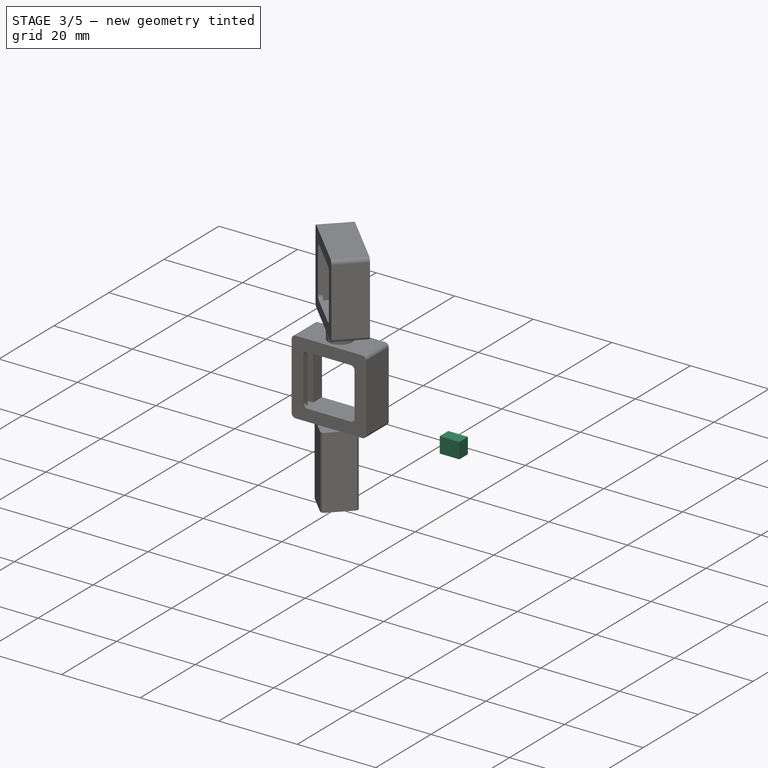
[diagram: stage 3 of 5 — iso view after this stage's code; geometry added in this stage tinted green]
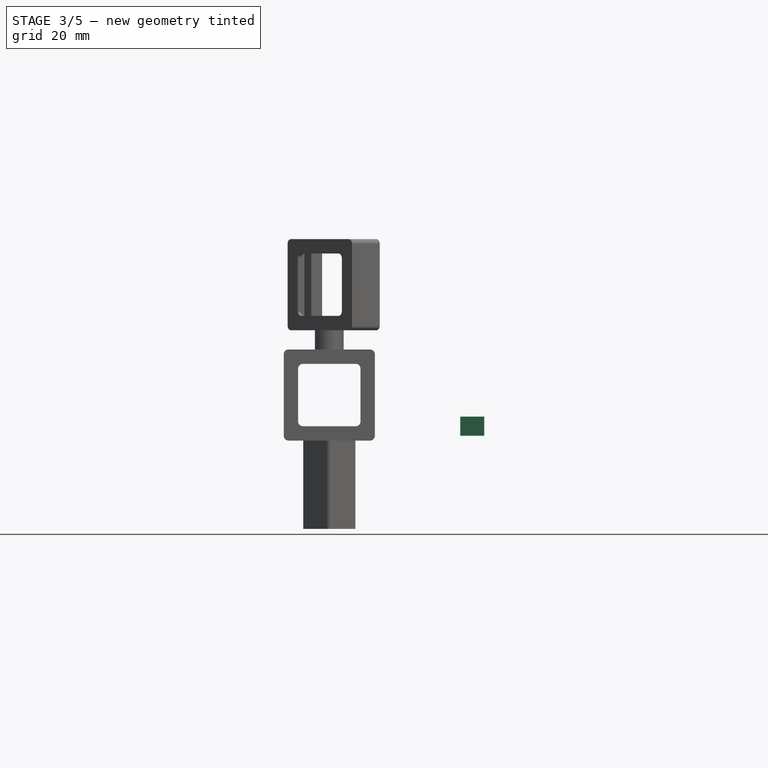
[diagram: stage 3 of 5 — front view after this stage's code; geometry added in this stage tinted green]
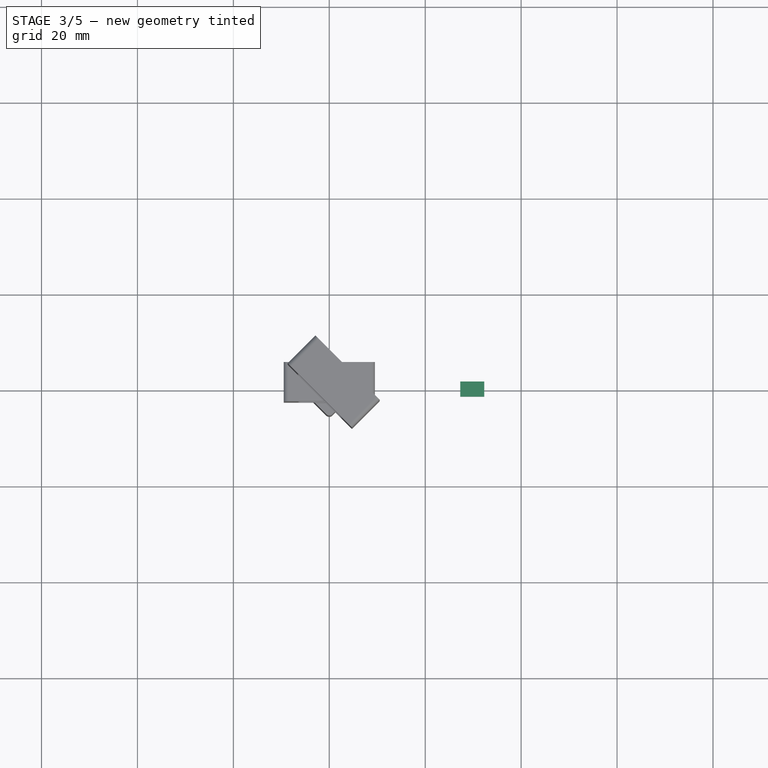
[diagram: stage 3 of 5 — top view after this stage's code; geometry added in this stage tinted green]
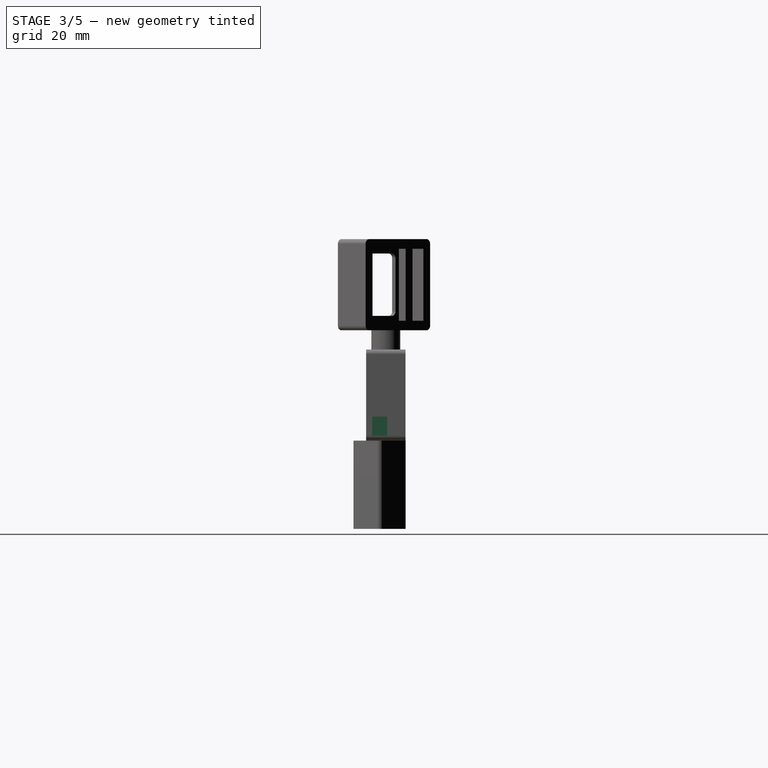
[diagram: stage 3 of 5 — right view after this stage's code; geometry added in this stage tinted green]
FEATURE [PartDesign::Body] Body002  label="bearing"
  AllowCompound = false
  Group = -> [Sketch002,Pad001]
  Origin = -> Origin004
  Tip = -> Pad001
FEATURE [PartDesign::SubShapeBinder] Binder
  BindCopyOnChange = 0
  BindMode = 0
  ClaimChildren = false
  Context = -> Body [Boolean.Body001.Binder.]
  Fuse = false
  MakeFace = true
  OffsetFill = false
  OffsetIntersection = false
  OffsetJoinType = 0
  OffsetOpenResult = false
  PartialLoad = false
  Refine = true
  Relative = true
  Support = -> [Body002]
  _Version = 2
FEATURE [Sketcher::SketchObject] Sketch001
  ArcFitTolerance = 1e-06
  AttachmentSupport = -> [Origin002]
  ExternalGeometry = -> [Binder]
  ExternalTypes = [0]
  FullyConstrained = true
  MakeInternals = false
  MapMode = 5
  sketch-geometry (1):
    g0: Circle CenterX=0 CenterY=0 CenterZ=0 NormalX=0 NormalY=0 NormalZ=1 AngleXU=0 Radius=5
  constraints (2):
    c: Coincident(g0,g-1)
    c: Equal(g-3,g0)
FEATURE [PartDesign::Pad] Pad
  Direction = (0,0,1)
  Length = 8
  Length2 = 10
  Profile = -> Sketch001
  ReferenceAxis = -> Sketch001 [N_Axis]
  Refine = true
  SideType = 0
  Suppressed = false
  Type = 0
  Type2 = 0
  expr: Length = VarSet.bearing_height
FEATURE [PartDesign::Mirrored] Mirror001
  MirrorPlane = -> XZ_Plane003
  Refine = true
  Suppressed = false
  TransformMode = 0
FEATURE [Sketcher::SketchObject] Sketch020
  ArcFitTolerance = 1e-06
  AttachmentSupport = -> [Pad]
  ExternalGeometry = -> [Pad]
  ExternalTypes = [0]
  FullyConstrained = true
  MakeInternals = false
  MapMode = 5
  Placement = pos=(0,0,0) rot=(1,0,0;3.14159rad)
  sketch-geometry (1):
    g0: Circle CenterX=0 CenterY=0 CenterZ=0 NormalX=0 NormalY=0 NormalZ=1 AngleXU=0 Radius=6.5
  constraints (2):
    c: Coincident(g0,g-3)
    c: Distance(g-3,g0) = 1.5
FEATURE [PartDesign::Pad] Pad012
  BaseFeature = -> Pad
  Direction = (0,0,-1)
  Length = 4
  Length2 = 10
  Profile = -> Sketch020
  ReferenceAxis = -> Sketch020 [N_Axis]
  Refine = true
  SideType = 0
  Suppressed = false
  Type = 0
  Type2 = 0
FEATURE [PartDesign::Body] Body003  label="rotor"
  AllowCompound = false
  Group = -> [Binder002,Sketch006,Pad004,Pad014,Pad015,Sketch008,Mirrored001,Pocket001,MultiTransform,Mirror,Mirror001,Sketch023,Sketch024,Sketch025,Pocket002,Mirrored,Fillet]
  Origin = -> Origin006
  Tip = -> Fillet
FEATURE [App::Point] Origin008  label="Origin011"
  Role = Origin
FEATURE [PartDesign::SubShapeBinder] Binder004
  BindCopyOnChange = 0
  BindMode = 0
  ClaimChildren = false
  Context = -> Body [Binder004.]
  Fuse = false
  MakeFace = true
  OffsetFill = false
  OffsetIntersection = false
  OffsetJoinType = 0
  OffsetOpenResult = false
  PartialLoad = false
  Refine = true
  Relative = true
  Support = -> [Body003]
  _Version = 2
FEATURE [Sketcher::SketchObject] Sketch026
  ArcFitTolerance = 1e-06
  AttachmentOffset = pos=(0,0,-4) rot=(0,0,1;0rad)
  AttachmentSupport = -> [Origin]
  ExternalGeometry = -> [Binder004]
  ExternalTypes = [0,0,0,0,0,0,0]
  FullyConstrained = true
  MakeInternals = false
  MapMode = 5
  Placement = pos=(0,0,-4) rot=(0,0,1;0rad)
  sketch-geometry (13):
    g0: LineSegment StartX=-19.8997 StartY=-2 StartZ=0 EndX=-40.8307 EndY=-2 EndZ=0
    g1: LineSegment StartX=-19.8997 StartY=2 StartZ=0 EndX=-40.8307 EndY=2 EndZ=0
    g2: LineSegment StartX=-53.2307 StartY=20 StartZ=0 EndX=-53.2307 EndY=-20 EndZ=0
    g3: LineSegment StartX=-53.2307 StartY=-20 StartZ=0 EndX=-40.8307 EndY=-20 EndZ=0
    g4: LineSegment StartX=-40.8307 StartY=-20 StartZ=0 EndX=-40.8307 EndY=2 EndZ=0
    g5: LineSegment [constr] StartX=-42.8307 StartY=4.2 StartZ=0 EndX=-51.2307 EndY=-4.2 EndZ=0
    g6: GeomPoint [constr] X=-47.0307 Y=-1.81e-14 Z=0
    g7: LineSegment StartX=-40.8307 StartY=-2 StartZ=0 EndX=-40.8307 EndY=16 EndZ=0
    g8: LineSegment [constr] StartX=-40.8307 StartY=-2 StartZ=0 EndX=-40.8307 EndY=2 EndZ=0
    g9: ArcOfCircle CenterX=0 CenterY=0 CenterZ=0 NormalX=0 NormalY=0 NormalZ=1 AngleXU=0 Radius=20 StartAngle=3.24176 EndAngle=7.85398
    g10: LineSegment StartX=-53.2307 StartY=20 StartZ=0 EndX=7.1e-15 EndY=20 EndZ=0
    g11: LineSegment StartX=-40.8307 StartY=16 StartZ=0 EndX=-12 EndY=16 EndZ=0
    g12: ArcOfCircle CenterX=0 CenterY=0 CenterZ=0 NormalX=0 NormalY=0 NormalZ=1 AngleXU=0 Radius=20 StartAngle=2.2143 EndAngle=3.04143
  constraints (34):
    c: Horizontal(g0)
    c: PointOnObject(g1,g-5)
    c: Coincident(g2,g3)
    c: Coincident(g3,g4)
    c: Horizontal(g3)
    c: Vertical(g2)
    c: Coincident(g5,g-9)
    c: Coincident(g5,g-8)
    c: Symmetric(g5,g5,g6)
    c: Symmetric(g3,g2,g6)
    c: Distance(g5,g2) = 2
    c: PointOnObject(g0,g-4)
    c: PointOnObject(g1,g-5)
    c: Vertical(g4)
    c: Coincident(g0,g7)
    c: Coincident(g1,g4)
    c: Coincident(g8,g0)
    c: Coincident(g8,g1)
    c: Vertical(g8)
    c: Distance(g9,g9) = 20
    c: Coincident(g0,g9)
    c: Coincident(g12,g1)
    c: Coincident(g9,g-3)
    c: Horizontal(g11)
    c: PointOnObject(g10,g-2)
    c: Distance(g11,g10) = 4
    c: Coincident(g10,g9)
    c: Coincident(g11,g12)
    c: Coincident(g9,g12)
    c: PointOnObject(g1,g-3)
    c: Vertical(g7)
    c: Coincident(g11,g7)
    c: Coincident(g10,g2)
    c: Horizontal(g10)
FEATURE [PartDesign::Pad] Pad016
  Direction = (0,0,1)
  Length = 4
  Length2 = 10
  Profile = -> Sketch026
  ReferenceAxis = -> Sketch026 [N_Axis]
  Refine = true
  Reversed = true
  SideType = 0
  Suppressed = false
  Type = 0
  Type2 = 0
FEATURE [Sketcher::SketchObject] Sketch
  ArcFitTolerance = 1e-06
  AttachmentSupport = -> [Pad016]
  ExternalGeometry = -> [Binder004,Pad016]
  ExternalTypes = [0,0,0,0]
  FullyConstrained = true
  MakeInternals = false
  MapMode = 5
  Placement = pos=(0,0,-4) rot=(0,0,1;0rad)
  expr: Constraints[2] = VarSet.magnet_distance
  sketch-geometry (6):
    g0: LineSegment [constr] StartX=-51.2307 StartY=4.2 StartZ=0 EndX=-51.2307 EndY=7.2 EndZ=0
    g1: LineSegment StartX=-53.2307 StartY=20 StartZ=0 EndX=-53.2307 EndY=17 EndZ=0
    g2: LineSegment StartX=-53.2307 StartY=17 StartZ=0 EndX=-40.8307 EndY=17 EndZ=0
    g3: LineSegment StartX=-40.8307 StartY=17 StartZ=0 EndX=-40.8307 EndY=20 EndZ=0
    g4: LineSegment StartX=-40.8307 StartY=20 StartZ=0 EndX=-53.2307 EndY=20 EndZ=0
    g5: LineSegment [constr] StartX=-40.8307 StartY=16 StartZ=0 EndX=-40.8307 EndY=17 EndZ=0
  constraints (16):
    c: Coincident(g0,g-3)
    c: Vertical(g0)
    c: DistanceY(g0,g0) = 3
    c: Coincident(g1,g2)
    c: Coincident(g2,g3)
    c: Coincident(g3,g4)
    c: Coincident(g4,g1)
    c: Vertical(g1)
    c: Vertical(g3)
    c: Horizontal(g2)
    c: Horizontal(g4)
    c: Distance(g1,g1) = 3
    c: Coincident(g1,g-5)
    c: Coincident(g5,g-6)
    c: Coincident(g5,g2)
    c: Vertical(g5)
FEATURE [PartDesign::Pad] Pad017
  BaseFeature = -> Pad016
  Direction = (0,0,1)
  Length = 13
  Length2 = 10
  Profile = -> Sketch
  ReferenceAxis = -> Sketch [N_Axis]
  Refine = true
  SideType = 0
  Suppressed = false
  Type = 3
  Type2 = 0
  UpToFace = -> Binder004 [Face9]
FEATURE [Sketcher::SketchObject] Sketch027
  ArcFitTolerance = 1e-06
  AttachmentSupport = -> [Pad017]
  ExternalGeometry = -> [Binder004]
  ExternalTypes = [0]
  FullyConstrained = true
  MakeInternals = false
  MapMode = 5
  Placement = pos=(0,17,0) rot=(1,0,0;1.5708rad)
FEATURE [PartDesign::Pad] Pad018
  BaseFeature = -> Pad017
  Direction = (0,-1,2e-16)
  Length = 10
  Length2 = 10
  Offset = 3
  Profile = -> Sketch027
  ReferenceAxis = -> Sketch027 [N_Axis]
  Refine = true
  SideType = 0
  Suppressed = false
  Type = 3
  Type2 = 0
  UpToFace = -> Binder004 [Face12]
  expr: Offset = VarSet.magnet_distance
FEATURE [PartDesign::Mirrored] Mirror002
  MirrorPlane = -> Sketch027 [V_Axis]
  Refine = true
  Suppressed = false
  TransformMode = 0
FEATURE [PartDesign::Mirrored] Mirror003
  MirrorPlane = -> XZ_Plane
  Refine = true
  Suppressed = false
  TransformMode = 0
FEATURE [PartDesign::MultiTransform] MultiTransform001
  BaseFeature = -> Pad018
  Originals = -> [Pad016,Pad017,Pad018]
  Refine = true
  Suppressed = false
  TransformMode = 0
  Transformations = -> [Mirror002,Mirror003]
FEATURE [PartDesign::Body] Body005  label="mirror_base"
  AllowCompound = false
  Group = -> [Sketch031,Binder006,Pad021]
  Origin = -> Origin011
  Placement = pos=(0,0,0) rot=(0,0,1;-1.5708rad)
  Tip = -> Pad021
FEATURE [App::Point] Origin014  label="Origin019"
  Role = Origin
FEATURE [PartDesign::Boolean] Boolean
  BaseFeature = -> MultiTransform001
  Group = -> [Body001]
  Refine = true
  Suppressed = false
  Type = 0
FEATURE [PartDesign::Body] Body  label="base"
  AllowCompound = true
  Group = -> [Binder004,Sketch026,Pad016,Sketch,Pad017,Sketch027,Pad018,MultiTransform001,Mirror002,Mirror003,Boolean]
  Origin = -> Origin
  Tip = -> Boolean
FEATURE [App::Point] Origin016  label="Origin021"
  Role = Origin
FEATURE [PartDesign::SubShapeBinder] Binder010
  BindCopyOnChange = 0
  BindMode = 0
  ClaimChildren = false
  Context = -> Body007 [Binder010.]
  Fuse = false
  MakeFace = true
  OffsetFill = false
  OffsetIntersection = false
  OffsetJoinType = 0
  OffsetOpenResult = false
  PartialLoad = false
  Refine = true
  Relative = true
  Support = -> [Body]
  _Version = 2
FEATURE [Sketcher::SketchObject] Sketch038
  ArcFitTolerance = 1e-06
  AttachmentSupport = -> [Binder010]
  ExternalGeometry = -> [Binder010]
  ExternalTypes = [0,0,0,0,0,0]
  FullyConstrained = true
  MakeInternals = false
  MapMode = 45
  Placement = pos=(1.32e-14,-2.28733e-11,-8) rot=(0,0,1;1.5708rad)
  sketch-geometry (8):
    g0: LineSegment StartX=-16 StartY=-40.8307 StartZ=0 EndX=-2 EndY=-40.8307 EndZ=0
    g1: LineSegment StartX=-2 StartY=-40.8307 StartZ=0 EndX=-2 EndY=-26.8307 EndZ=0
    g2: LineSegment StartX=-2 StartY=-26.8307 StartZ=0 EndX=-16 EndY=-26.8307 EndZ=0
    g3: LineSegment StartX=-16 StartY=-26.8307 StartZ=0 EndX=-16 EndY=-40.8307 EndZ=0
    g4: LineSegment StartX=2 StartY=-40.8307 StartZ=0 EndX=16 EndY=-40.8307 EndZ=0
    g5: LineSegment StartX=16 StartY=-40.8307 StartZ=0 EndX=16 EndY=-26.8307 EndZ=0
    g6: LineSegment StartX=16 StartY=-26.8307 StartZ=0 EndX=2 EndY=-26.8307 EndZ=0
    g7: LineSegment StartX=2 StartY=-26.8307 StartZ=0 EndX=2 EndY=-40.8307 EndZ=0
  constraints (22):
    c: Coincident(g0,g1)
    c: Coincident(g1,g2)
    c: Coincident(g2,g3)
    c: Coincident(g3,g0)
    c: Horizontal(g0)
    c: Horizontal(g2)
    c: Vertical(g1)
    c: Vertical(g3)
    c: Coincident(g0,g-4)
    c: PointOnObject(g1,g-5)
    c: Equal(g3,g0)
    c: Coincident(g4,g5)
    c: Coincident(g5,g6)
    c: Coincident(g6,g7)
    c: Coincident(g7,g4)
    c: Horizontal(g4)
    c: Horizontal(g6)
    c: Vertical(g5)
    c: Vertical(g7)
    c: Coincident(g4,g-7)
    c: PointOnObject(g5,g-8)
    c: Equal(g4,g7)
FEATURE [PartDesign::Pad] Pad026
  Direction = (0,0,1)
  Length = 4
  Length2 = 10
  Profile = -> Sketch038
  ReferenceAxis = -> Sketch038 [N_Axis]
  Refine = true
  SideType = 0
  Suppressed = false
  Type = 0
  Type2 = 0
FEATURE [PartDesign::Body] Body006  label="cover"
  AllowCompound = false
  Group = -> [Binder011,Sketch036,Pad024,Sketch037,Pad025,Fillet003]
  Origin = -> Origin013
  Tip = -> Fillet003
FEATURE [PartDesign::SubShapeBinder] Binder013
  BindCopyOnChange = 0
  BindMode = 0
  ClaimChildren = false
  Context = -> Body007 [Binder013.]
  Fuse = false
  MakeFace = true
  OffsetFill = false
  OffsetIntersection = false
  OffsetJoinType = 0
  OffsetOpenResult = false
  PartialLoad = false
  Refine = true
  Relative = true
  Support = -> [Fusion]
  _Version = 2
FEATURE [PartDesign::Pad] Pad027
  BaseFeature = -> Pad026
  Direction = (0,0,1)
  Length = 10
  Length2 = 10
  Offset = -3
  Profile = -> Sketch039
  ReferenceAxis = -> Sketch039 [N_Axis]
  Refine = true
  SideType = 0
  Suppressed = false
  Type = 3
  Type2 = 0
  UpToFace = -> Binder013 [Face42]
FEATURE [Sketcher::SketchObject] Sketch040
  ArcFitTolerance = 1e-06
  AttachmentSupport = -> [Pad027]
  ExternalGeometry = -> [Pad027]
  ExternalTypes = [0,0,0]
  FullyConstrained = true
  MakeInternals = false
  MapMode = 5
  Placement = pos=(0,12,0) rot=(1,0,0;1.5708rad)
  sketch-geometry (4):
    g0: LineSegment StartX=26.8307 StartY=34.4 StartZ=0 EndX=26.8307 EndY=30.4 EndZ=0
    g1: LineSegment StartX=26.8307 StartY=30.4 StartZ=0 EndX=40.8307 EndY=30.4 EndZ=0
    g2: LineSegment StartX=40.8307 StartY=30.4 StartZ=0 EndX=40.8307 EndY=34.4 EndZ=0
    g3: LineSegment StartX=40.8307 StartY=34.4 StartZ=0 EndX=26.8307 EndY=34.4 EndZ=0
  constraints (10):
    c: Coincident(g0,g1)
    c: Coincident(g1,g2)
    c: Coincident(g2,g3)
    c: Coincident(g3,g0)
    c: Vertical(g0)
    c: Vertical(g2)
    c: Horizontal(g1)
    c: Coincident(g0,g-3)
    c: Distance(g2,g2) = 4
    c: Coincident(g2,g-5)
FEATURE [PartDesign::Pad] Pad028
  BaseFeature = -> Pad027
  Direction = (0,-1,2e-16)
  Length = 10
  Length2 = 10
  Profile = -> Sketch040
  ReferenceAxis = -> Sketch040 [N_Axis]
  Refine = true
  SideType = 0
  Suppressed = false
  Type = 3
  Type2 = 0
  UpToFace = -> Pad027 [Face4]
FEATURE [Sketcher::SketchObject] Sketch041
  ArcFitTolerance = 1e-06
  AttachmentSupport = -> [Pad028]
  ExternalGeometry = -> [Pad028]
  ExternalTypes = [0,0]
  FullyConstrained = true
  MakeInternals = false
  MapMode = 5
  Placement = pos=(26.8307,-2.02e-14,1.92e-14) rot=(0.57735,-0.57735,-0.57735;2.0944rad)
  sketch-geometry (4):
    g0: LineSegment StartX=-16 StartY=34.4 StartZ=0 EndX=-16 EndY=30.4 EndZ=0
    g1: LineSegment StartX=-16 StartY=30.4 StartZ=0 EndX=16 EndY=30.4 EndZ=0
    g2: LineSegment StartX=16 StartY=30.4 StartZ=0 EndX=16 EndY=34.4 EndZ=0
    g3: LineSegment StartX=16 StartY=34.4 StartZ=0 EndX=-16 EndY=34.4 EndZ=0
  constraints (10):
    c: Coincident(g0,g1)
    c: Coincident(g1,g2)
    c: Coincident(g2,g3)
    c: Coincident(g3,g0)
    c: Vertical(g0)
    c: Vertical(g2)
    c: Horizontal(g1)
    c: Coincident(g0,g-4)
    c: PointOnObject(g-3,g1)
    c: Coincident(g2,g-4)
FEATURE [PartDesign::Pad] Pad029
  BaseFeature = -> Pad028
  Direction = (-1,0,0)
  Length = 9
  Length2 = 10
  Profile = -> Sketch041
  ReferenceAxis = -> Sketch041 [N_Axis]
  Refine = true
  SideType = 0
  Suppressed = false
  Type = 0
  Type2 = 0
FEATURE [Sketcher::SketchObject] Sketch042
  ArcFitTolerance = 1e-06
  AttachmentSupport = -> [Pad029]
  ExternalTypes = [0,0]
  FullyConstrained = true
  MakeInternals = false
  MapMode = 5
  Placement = pos=(2.07e-14,0,34.4) rot=(0,0,1;0rad)
  expr: Constraints[4] = 2 * VarSet.target_angle
  expr: Constraints[6] = -2 * VarSet.target_angle
  sketch-geometry (19):
    g0: LineSegment [constr] StartX=-0.185786 StartY=-7.5 StartZ=0 EndX=-0.185786 EndY=7.5 EndZ=0
    g1: GeomPoint [constr] X=-0.185786 Y=5.6875e-12 Z=0
    g2: LineSegment [constr] StartX=-0.185786 StartY=5.6875e-12 StartZ=0 EndX=29.8142 EndY=8.60236 EndZ=0
    g3: LineSegment [constr] StartX=-0.185786 StartY=5.6875e-12 StartZ=0 EndX=29.8142 EndY=-8.60236 EndZ=0
    g4: LineSegment [constr] StartX=-0.185786 StartY=5.6875e-12 StartZ=0 EndX=29.8142 EndY=0 EndZ=0
    g5: LineSegment [constr] StartX=29.8142 StartY=8.60236 StartZ=0 EndX=29.8142 EndY=0 EndZ=0
    g6: LineSegment [constr] StartX=29.8142 StartY=0 StartZ=0 EndX=29.8142 EndY=-8.60236 EndZ=0
    g7: LineSegment StartX=26.9809 StartY=9.41327 StartZ=0 EndX=31.7872 EndY=10.7915 EndZ=0
    g8: LineSegment StartX=31.7872 StartY=10.7915 StartZ=0 EndX=32.6475 EndY=7.79145 EndZ=0
    g9: LineSegment StartX=32.6475 StartY=7.79145 StartZ=0 EndX=27.8412 EndY=6.41327 EndZ=0
    g10: LineSegment StartX=27.8412 StartY=6.41327 StartZ=0 EndX=26.9809 EndY=9.41327 EndZ=0
    g11: LineSegment StartX=27.8412 StartY=-6.41327 StartZ=0 EndX=26.9809 EndY=-9.41327 EndZ=0
    g12: LineSegment StartX=26.9809 StartY=-9.41327 StartZ=0 EndX=31.7872 EndY=-10.7915 EndZ=0
    g13: LineSegment StartX=31.7872 StartY=-10.7915 StartZ=0 EndX=32.6475 EndY=-7.79145 EndZ=0
    g14: LineSegment StartX=32.6475 StartY=-7.79145 StartZ=0 EndX=27.8412 EndY=-6.41327 EndZ=0
    g15: LineSegment StartX=27.3142 StartY=1.56045 StartZ=0 EndX=27.3142 EndY=-1.56045 EndZ=0
    g16: LineSegment StartX=27.3142 StartY=-1.56045 StartZ=0 EndX=32.3142 EndY=-1.56045 EndZ=0
    g17: LineSegment StartX=32.3142 StartY=-1.56045 StartZ=0 EndX=32.3142 EndY=1.56045 EndZ=0
    g18: LineSegment StartX=32.3142 StartY=1.56045 StartZ=0 EndX=27.3142 EndY=1.56045 EndZ=0
  constraints (51):
    c: Coincident(g0,g-3)
    c: PointOnObject(g0,g-4)
    c: Vertical(g0)
    c: Symmetric(g0,g0,g1)
    c: Angle(g-1,g2) = 0.279253
    c: Coincident(g2,g1)
    c: Angle(g-1,g3) = -0.279253
    c: Coincident(g3,g1)
    c: Coincident(g4,g1)
    c: PointOnObject(g4,g-1)
    c: Coincident(g5,g2)
    c: Coincident(g5,g4)
    c: Coincident(g6,g4)
    c: Coincident(g6,g3)
    c: Vertical(g6)
    c: Vertical(g5)
    c: DistanceX(g4,g4) = 30
    c: Coincident(g8,g7)
    c: Coincident(g9,g8)
    c: Coincident(g10,g9)
    c: Coincident(g10,g7)
    c: Perpendicular(g2,g10)
    c: Perpendicular(g2,g8)
    c: Parallel(g7,g2)
    c: Parallel(g9,g2)
    c: Symmetric(g7,g8,g2)
    c: Distance(g7,g7) = 5
    c: DistanceY(g10,g10) = 3
    c: Coincident(g12,g11)
    c: Coincident(g14,g13)
    c: Coincident(g14,g11)
    c: Equal(g10,g11)
    c: Equal(g14,g9)
    c: Equal(g14,g12)
    c: Equal(g13,g11)
    c: Parallel(g3,g12)
    c: Parallel(g3,g14)
    c: Perpendicular(g3,g11)
    c: Perpendicular(g13,g3)
    c: Symmetric(g11,g12,g3)
    c: Coincident(g15,g16)
    c: Coincident(g16,g17)
    c: Coincident(g17,g18)
    c: Coincident(g18,g15)
    c: Vertical(g15)
    c: Vertical(g17)
    c: Horizontal(g16)
    c: Horizontal(g18)
    c: Equal(g9,g18)
    c: Equal(g10,g15)
    c: Symmetric(g15,g16,g4)
FEATURE [PartDesign::Pocket] Pocket006
  BaseFeature = -> Pad029
  Direction = (0,0,-1)
  Length = 5
  Length2 = 5
  Profile = -> Sketch042
  ReferenceAxis = -> Sketch042 [N_Axis]
  Refine = true
  SideType = 0
  Suppressed = false
  Type = 2
  Type2 = 0
FEATURE [PartDesign::Fillet] Fillet004
  Base = -> Pocket006 [Edge20,Edge18,Edge68,Edge67,Edge25,Edge8,Edge2,Edge1,Edge11,Edge47]
  BaseFeature = -> Pocket006
  Radius = 2
  Refine = true
  SupportTransform = false
  Suppressed = false
  UseAllEdges = false
FEATURE [PartDesign::Body] Body009  label="container"
  AllowCompound = false
  Group = -> [Binder014,Sketch047,Pad032,Sketch048,Pad033,Sketch049,Pad034,Sketch050,Pad035]
  Origin = -> Origin021
  Tip = -> Pad035
FEATURE [App::Point] Origin024  label="Origin032"
  Role = Origin
FEATURE [PartDesign::SubShapeBinder] Binder015
  BindCopyOnChange = 0
  BindMode = 0
  ClaimChildren = false
  Context = -> Body010 [Binder015.]
  Fuse = false
  MakeFace = true
  OffsetFill = false
  OffsetIntersection = false
  OffsetJoinType = 0
  OffsetOpenResult = false
  PartialLoad = false
  Refine = true
  Relative = true
  Support = -> [Body007]
  _Version = 2
FEATURE [Sketcher::SketchObject] Sketch051
  ArcFitTolerance = 1e-06
  AttachmentSupport = -> [Binder015]
  ExternalGeometry = -> [Binder015]
  ExternalTypes = [0,0,0,0]
  FullyConstrained = true
  MakeInternals = false
  MapMode = 5
  Placement = pos=(0,0,30.4) rot=(1,0,0;3.14159rad)
  sketch-geometry (5):
    g0: LineSegment StartX=27.3142 StartY=-1.56045 StartZ=0 EndX=27.3142 EndY=1.56045 EndZ=0
    g1: LineSegment StartX=27.3142 StartY=1.56045 StartZ=0 EndX=32.3142 EndY=1.56045 EndZ=0
    g2: LineSegment StartX=32.3142 StartY=-1.56045 StartZ=0 EndX=27.3142 EndY=-1.56045 EndZ=0
    g3: LineSegment [constr] StartX=27.3142 StartY=-1.56045 StartZ=0 EndX=32.3142 EndY=1.56045 EndZ=0
    g4: LineSegment StartX=32.3142 StartY=1.56045 StartZ=0 EndX=32.3142 EndY=-1.56045 EndZ=0
  constraints (11):
    c: Coincident(g0,g1)
    c: Coincident(g2,g0)
    c: Horizontal(g1)
    c: Coincident(g3,g-4)
    c: Coincident(g3,g-6)
    c: Coincident(g4,g1)
    c: Coincident(g4,g2)
    c: Vertical(g4)
    c: Coincident(g0,g-6)
    c: Coincident(g0,g3)
    c: Coincident(g2,g-5)
FEATURE [PartDesign::Pad] Pad036
  Direction = (0,0,-1)
  Length = 10
  Length2 = 10
  Profile = -> Sketch051
  ReferenceAxis = -> Sketch051 [N_Axis]
  Refine = true
  SideType = 0
  Suppressed = false
  Type = 3
  Type2 = 0
  UpToFace = -> Binder015 [Face15]
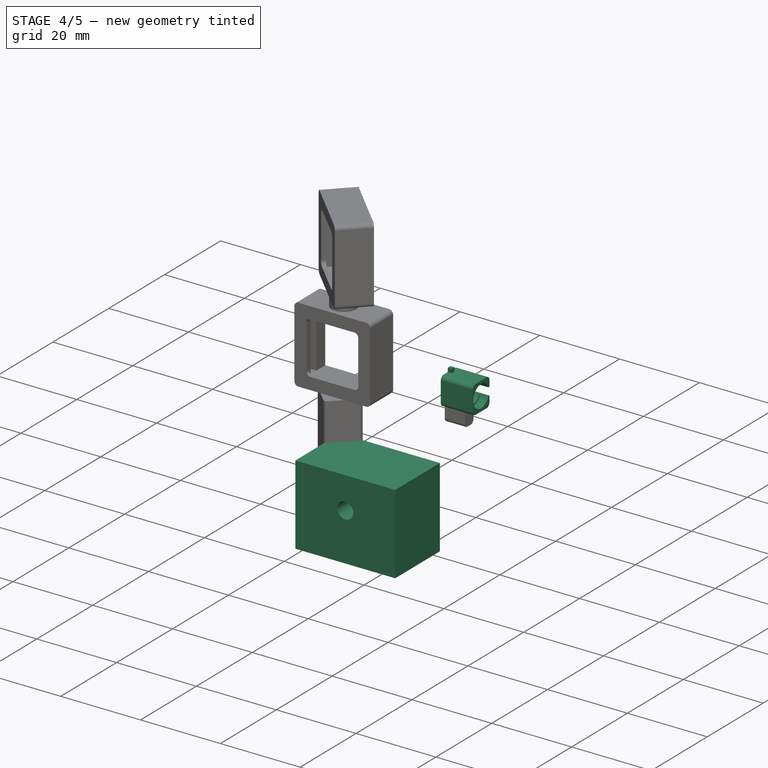
[diagram: stage 4 of 5 — iso view after this stage's code; geometry added in this stage tinted green]
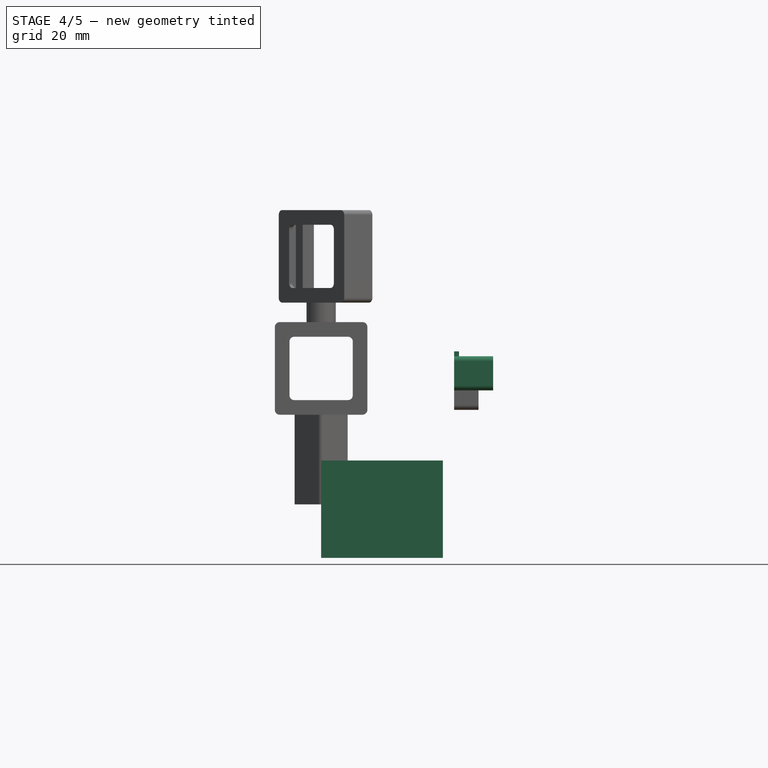
[diagram: stage 4 of 5 — front view after this stage's code; geometry added in this stage tinted green]
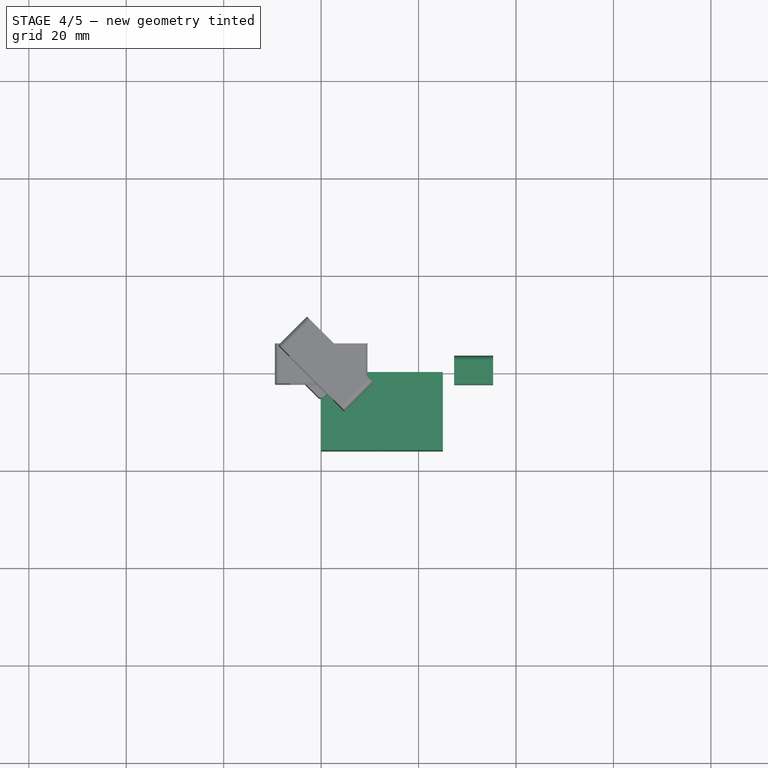
[diagram: stage 4 of 5 — top view after this stage's code; geometry added in this stage tinted green]
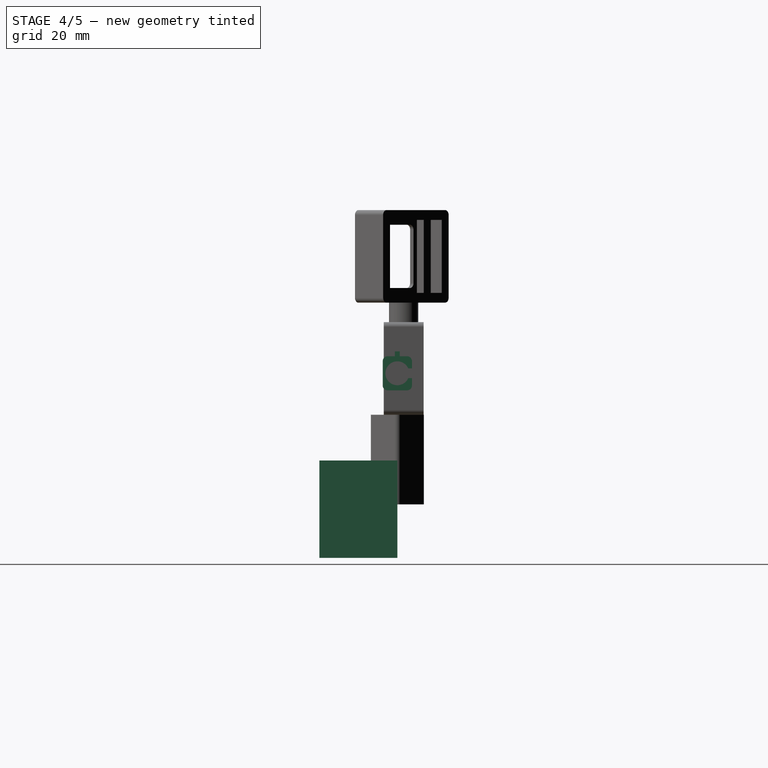
[diagram: stage 4 of 5 — right view after this stage's code; geometry added in this stage tinted green]
FEATURE [Sketcher::SketchObject] Sketch052
  ArcFitTolerance = 1e-06
  AttachmentSupport = -> [Pad036]
  ExternalGeometry = -> [Pad036]
  ExternalTypes = [0,0]
  FullyConstrained = true
  MakeInternals = false
  MapMode = 5
  Placement = pos=(2.07e-14,0,34.4) rot=(0,0,1;0rad)
  sketch-geometry (6):
    g0: LineSegment StartX=27.3142 StartY=3 StartZ=0 EndX=27.3142 EndY=-3 EndZ=0
    g1: LineSegment StartX=27.3142 StartY=-3 StartZ=0 EndX=35.3142 EndY=-3 EndZ=0
    g2: LineSegment StartX=35.3142 StartY=-3 StartZ=0 EndX=35.3142 EndY=3 EndZ=0
    g3: LineSegment StartX=35.3142 StartY=3 StartZ=0 EndX=27.3142 EndY=3 EndZ=0
    g4: LineSegment [constr] StartX=27.3142 StartY=1.56045 StartZ=0 EndX=27.3142 EndY=3 EndZ=0
    g5: LineSegment [constr] StartX=27.3142 StartY=-1.56045 StartZ=0 EndX=27.3142 EndY=-3 EndZ=0
  constraints (16):
    c: Coincident(g0,g1)
    c: Coincident(g1,g2)
    c: Coincident(g2,g3)
    c: Coincident(g3,g0)
    c: Vertical(g0)
    c: Vertical(g2)
    c: Horizontal(g1)
    c: Horizontal(g3)
    c: PointOnObject(g-3,g0)
    c: Coincident(g4,g-3)
    c: Coincident(g4,g0)
    c: Coincident(g5,g-3)
    c: Coincident(g5,g0)
    c: Equal(g4,g5)
    c: Distance(g0,g0) = 6
    c: DistanceX(g3,g3) = 8
FEATURE [PartDesign::Pad] Pad037
  BaseFeature = -> Pad036
  Direction = (0,0,1)
  Length = 7
  Length2 = 10
  Profile = -> Sketch052
  ReferenceAxis = -> Sketch052 [N_Axis]
  Refine = true
  SideType = 0
  Suppressed = false
  Type = 0
  Type2 = 0
FEATURE [Sketcher::SketchObject] Sketch053
  ArcFitTolerance = 1e-06
  AttachmentSupport = -> [Pad037]
  ExternalGeometry = -> [Pad037]
  ExternalTypes = [0,0,0,0]
  FullyConstrained = true
  MakeInternals = false
  MapMode = 5
  Placement = pos=(35.3142,0,0) rot=(0.57735,0.57735,0.57735;2.0944rad)
  sketch-geometry (3):
    g0: LineSegment [constr] StartX=3 StartY=34.4 StartZ=0 EndX=-3 EndY=41.4 EndZ=0
    g1: GeomPoint [constr] X=1.99296e-11 Y=37.9 Z=0
    g2: Circle CenterX=1.99296e-11 CenterY=37.9 CenterZ=0 NormalX=0 NormalY=0 NormalZ=1 AngleXU=0 Radius=2.775
  constraints (5):
    c: Coincident(g0,g-5)
    c: Coincident(g0,g-6)
    c: Symmetric(g0,g0,g1)
    c: Diameter(g2) = 5.55
    c: Coincident(g2,g1)
FEATURE [PartDesign::Pocket] Pocket010
  BaseFeature = -> Pad037
  Direction = (-1,0,0)
  Length = 2
  Length2 = 5
  Profile = -> Sketch053
  ReferenceAxis = -> Sketch053 [N_Axis]
  Refine = true
  SideType = 0
  Suppressed = false
  Type = 0
  Type2 = 0
FEATURE [Sketcher::SketchObject] Sketch054
  ArcFitTolerance = 1e-06
  AttachmentSupport = -> [Pocket010]
  ExternalGeometry = -> [Pocket010]
  ExternalTypes = [0]
  FullyConstrained = true
  MakeInternals = false
  MapMode = 5
  Placement = pos=(33.3142,0,0) rot=(0.57735,0.57735,0.57735;2.0944rad)
  sketch-geometry (1):
    g0: Circle CenterX=0 CenterY=37.9 CenterZ=0 NormalX=0 NormalY=0 NormalZ=1 AngleXU=0 Radius=2.45
  constraints (2):
    c: Diameter(g0) = 4.9
    c: Coincident(g0,g-3)
FEATURE [PartDesign::Pocket] Pocket011
  BaseFeature = -> Pocket010
  Direction = (-1,0,0)
  Length = 5
  Length2 = 5
  Profile = -> Sketch054
  ReferenceAxis = -> Sketch054 [N_Axis]
  Refine = true
  SideType = 0
  Suppressed = false
  Type = 1
  Type2 = 0
FEATURE [PartDesign::Fillet] Fillet008
  Base = -> Pocket011 [Edge22,Edge24,Edge20,Edge18,Edge4,Edge2]
  BaseFeature = -> Pocket011
  Radius = 1
  Refine = true
  SupportTransform = false
  Suppressed = false
  UseAllEdges = false
FEATURE [App::Point] Origin026  label="Origin034"
  Role = Origin
FEATURE [PartDesign::FeatureBase] Clone
  BaseFeature = -> Pad037
  Suppressed = false
FEATURE [Sketcher::SketchObject] Sketch055
  ArcFitTolerance = 1e-06
  AttachmentSupport = -> [Clone]
  ExternalGeometry = -> [Clone]
  ExternalTypes = [0,0,0,0]
  FullyConstrained = true
  MakeInternals = false
  MapMode = 5
  Placement = pos=(35.3142,0,0) rot=(0.57735,0.57735,0.57735;2.0944rad)
  sketch-geometry (3):
    g0: LineSegment [constr] StartX=3 StartY=34.4 StartZ=0 EndX=-3 EndY=41.4 EndZ=0
    g1: Circle CenterX=1.99299e-11 CenterY=37.9 CenterZ=0 NormalX=0 NormalY=0 NormalZ=1 AngleXU=0 Radius=2.9
    g2: GeomPoint X=1.99299e-11 Y=37.9 Z=0
  constraints (5):
    c: Coincident(g0,g-6)
    c: Coincident(g0,g-4)
    c: Diameter(g1) = 5.8
    c: Symmetric(g0,g0,g2)
    c: Coincident(g1,g2)
FEATURE [PartDesign::Pocket] Pocket012
  BaseFeature = -> Clone
  Direction = (-1,0,0)
  Length = 2
  Length2 = 5
  Profile = -> Sketch055
  ReferenceAxis = -> Sketch055 [N_Axis]
  Refine = true
  SideType = 0
  Suppressed = false
  Type = 0
  Type2 = 0
FEATURE [Sketcher::SketchObject] Sketch056
  ArcFitTolerance = 1e-06
  AttachmentSupport = -> [Pocket012]
  ExternalGeometry = -> [Pocket012]
  ExternalTypes = [0]
  FullyConstrained = true
  MakeInternals = false
  MapMode = 5
  Placement = pos=(33.3142,0,0) rot=(0.57735,0.57735,0.57735;2.0944rad)
  sketch-geometry (1):
    g0: Circle CenterX=0 CenterY=37.9 CenterZ=0 NormalX=0 NormalY=0 NormalZ=1 AngleXU=0 Radius=2.5
  constraints (2):
    c: Diameter(g0) = 5
    c: Coincident(g0,g-3)
FEATURE [PartDesign::Pocket] Pocket013
  BaseFeature = -> Pocket012
  Direction = (-1,0,0)
  Length = 5
  Length2 = 5
  Profile = -> Sketch056
  ReferenceAxis = -> Sketch056 [N_Axis]
  Refine = true
  SideType = 0
  Suppressed = false
  Type = 1
  Type2 = 0
FEATURE [PartDesign::Fillet] Fillet009
  Base = -> Pocket013 [Edge22,Edge24,Edge18,Edge20,Edge2,Edge4]
  BaseFeature = -> Pocket013
  Radius = 1
  Refine = true
  SupportTransform = false
  Suppressed = false
  UseAllEdges = false
FEATURE [Sketcher::SketchObject] Sketch057
  ArcFitTolerance = 1e-06
  AttachmentSupport = -> [Pocket011]
  ExternalGeometry = -> [Pocket011]
  ExternalTypes = [0,0,0]
  FullyConstrained = false
  MakeInternals = false
  MapMode = 5
  Placement = pos=(35.3142,0,0) rot=(0.57735,0.57735,0.57735;2.0944rad)
  sketch-geometry (10):
    g0: LineSegment [constr] StartX=3 StartY=34.4 StartZ=0 EndX=-3 EndY=41.4 EndZ=0
    g1: GeomPoint [constr] X=1.99294e-11 Y=37.9 Z=0
    g2: LineSegment StartX=4.04081 StartY=38.9 StartZ=0 EndX=1.95919 EndY=38.9 EndZ=0
    g3: LineSegment StartX=1.95919 StartY=38.9 StartZ=0 EndX=1.95919 EndY=36.9 EndZ=0
    g4: LineSegment StartX=1.95919 StartY=36.9 StartZ=0 EndX=4.04081 EndY=36.9 EndZ=0
    g5: LineSegment StartX=4.04081 StartY=36.9 StartZ=0 EndX=4.04081 EndY=38.9 EndZ=0
    g6: GeomPoint X=1.95919 Y=37.9 Z=0
    g7: LineSegment [constr] StartX=1.95919 StartY=37.9 StartZ=0 EndX=1.99294e-11 EndY=37.9 EndZ=0
    g8: LineSegment [constr] StartX=4.04081 StartY=38.9 StartZ=0 EndX=3 EndY=41.4 EndZ=0
    g9: LineSegment [constr] StartX=1.95919 StartY=38.9 StartZ=0 EndX=3 EndY=41.4 EndZ=0
  constraints (21):
    c: Coincident(g0,g-4)
    c: Coincident(g0,g-3)
    c: Symmetric(g0,g0,g1)
    c: Coincident(g2,g3)
    c: Coincident(g3,g4)
    c: Coincident(g4,g5)
    c: Coincident(g5,g2)
    c: Horizontal(g2)
    c: Horizontal(g4)
    c: Vertical(g3)
    c: Vertical(g5)
    c: Distance(g2,g4) = 2
    c: Symmetric(g3,g3,g6)
    c: Coincident(g7,g6)
    c: Coincident(g7,g1)
    c: Horizontal(g7)
    c: Coincident(g8,g2)
    c: Coincident(g8,g-5)
    c: Coincident(g9,g2)
    c: Coincident(g9,g8)
    c: Equal(g8,g9)
FEATURE [PartDesign::Pocket] Pocket014
  BaseFeature = -> Fillet008
  Direction = (-1,0,0)
  Length = 5
  Length2 = 5
  Profile = -> Sketch057
  ReferenceAxis = -> Sketch057 [N_Axis]
  Refine = true
  SideType = 0
  Suppressed = false
  Type = 1
  Type2 = 0
FEATURE [PartDesign::Body] Body010  label="rgb_holder"
  AllowCompound = false
  Group = -> [Binder015,Sketch051,Pad036,Sketch052,Pad037,Sketch053,Pocket010,Sketch054,Pocket011,Fillet008,Sketch057,Pocket014]
  Origin = -> Origin023
  Tip = -> Pocket014
FEATURE [Sketcher::SketchObject] Sketch058
  ArcFitTolerance = 1e-06
  AttachmentSupport = -> [Pocket013]
  ExternalGeometry = -> [Pocket013]
  ExternalTypes = [0,0,0,0]
  FullyConstrained = false
  MakeInternals = false
  MapMode = 5
  Placement = pos=(35.3142,0,0) rot=(0.57735,0.57735,0.57735;2.0944rad)
  sketch-geometry (8):
    g0: LineSegment [constr] StartX=3 StartY=34.4 StartZ=0 EndX=-3 EndY=41.4 EndZ=0
    g1: GeomPoint [constr] X=1.99295e-11 Y=37.9 Z=0
    g2: GeomPoint [constr] X=3 Y=37.9 Z=0
    g3: LineSegment StartX=1.81397 StartY=36.9 StartZ=0 EndX=4.18603 EndY=36.9 EndZ=0
    g4: LineSegment StartX=4.18603 StartY=36.9 StartZ=0 EndX=4.18603 EndY=38.9 EndZ=0
    g5: LineSegment StartX=4.18603 StartY=38.9 StartZ=0 EndX=1.81397 EndY=38.9 EndZ=0
    g6: LineSegment StartX=1.81397 StartY=38.9 StartZ=0 EndX=1.81397 EndY=36.9 EndZ=0
    g7: GeomPoint [constr] X=3 Y=37.9 Z=0
  constraints (15):
    c: Coincident(g0,g-6)
    c: Coincident(g0,g-4)
    c: Symmetric(g0,g0,g1)
    c: Symmetric(g-6,g-6,g2)
    c: Coincident(g3,g4)
    c: Coincident(g4,g5)
    c: Coincident(g5,g6)
    c: Coincident(g6,g3)
    c: Horizontal(g3)
    c: Horizontal(g5)
    c: Vertical(g4)
    c: Vertical(g6)
    c: Symmetric(g5,g3,g7)
    c: Distance(g3,g5) = 2
    c: Coincident(g7,g2)
FEATURE [PartDesign::Pocket] Pocket015
  BaseFeature = -> Fillet009
  Direction = (-1,0,0)
  Length = 5
  Length2 = 5
  Profile = -> Sketch058
  ReferenceAxis = -> Sketch058 [N_Axis]
  Refine = true
  SideType = 0
  Suppressed = false
  Type = 1
  Type2 = 0
FEATURE [Sketcher::SketchObject] Sketch059
  ArcFitTolerance = 1e-06
  AttachmentSupport = -> [Pocket015]
  ExternalGeometry = -> [Pocket015]
  ExternalTypes = [0,0,0,0]
  FullyConstrained = true
  MakeInternals = false
  MapMode = 5
  Placement = pos=(0,0,41.4) rot=(0,0,1;0rad)
  sketch-geometry (7):
    g0: LineSegment StartX=27.3142 StartY=-0.5 StartZ=0 EndX=27.3142 EndY=0.5 EndZ=0
    g1: LineSegment StartX=27.3142 StartY=0.5 StartZ=0 EndX=28.3142 EndY=0.5 EndZ=0
    g2: LineSegment StartX=28.3142 StartY=0.5 StartZ=0 EndX=28.3142 EndY=-0.5 EndZ=0
    g3: LineSegment StartX=28.3142 StartY=-0.5 StartZ=0 EndX=27.3142 EndY=-0.5 EndZ=0
    g4: LineSegment [constr] StartX=35.3142 StartY=-2 StartZ=0 EndX=27.3142 EndY=2 EndZ=0
    g5: LineSegment [constr] StartX=27.3142 StartY=2 StartZ=0 EndX=27.3142 EndY=-2 EndZ=0
    g6: GeomPoint [constr] X=27.3142 Y=3.08695e-11 Z=0
  constraints (16):
    c: Coincident(g0,g1)
    c: Coincident(g1,g2)
    c: Coincident(g2,g3)
    c: Coincident(g3,g0)
    c: Vertical(g0)
    c: Vertical(g2)
    c: Horizontal(g1)
    c: Horizontal(g3)
    c: Coincident(g4,g-6)
    c: Coincident(g4,g-5)
    c: DistanceX(g1,g1) = 1
    c: DistanceY(g2,g2) = 1
    c: Coincident(g5,g4)
    c: Coincident(g5,g-6)
    c: Symmetric(g5,g5,g6)
    c: Symmetric(g0,g0,g6)
FEATURE [PartDesign::Pad] Pad038
  BaseFeature = -> Pocket015
  Direction = (0,0,1)
  Length = 1
  Length2 = 10
  Profile = -> Sketch059
  ReferenceAxis = -> Sketch059 [N_Axis]
  Refine = true
  SideType = 0
  Suppressed = false
  Type = 0
  Type2 = 0
FEATURE [PartDesign::Body] Body011  label="photodiode_holder"
  AllowCompound = false
  Group = -> [Clone,Sketch055,Pocket012,Sketch056,Pocket013,Fillet009,Sketch058,Pocket015,Sketch059,Pad038]
  Origin = -> Origin025
  Tip = -> Pad038
FEATURE [App::Link] Link009  label="rgb_holder001"
  LinkPlacement = pos=(0.0345434,3.557e-12,-4.5747e-12) rot=(0,0,1;0rad)
  LinkedObject = -> Body010
  Placement = pos=(0.0345434,3.557e-12,-4.5747e-12) rot=(0,0,1;0rad)
FEATURE [App::Link] Link010  label="photodiode_holder001"
  LinkPlacement = pos=(1.1895,-0.384451,-3.1946e-12) rot=(0,0,-1;0.279253rad)
  LinkedObject = -> Body011
  Placement = pos=(1.1895,-0.384451,-3.1946e-12) rot=(0,0,-1;0.279253rad)
FEATURE [App::Link] Link011  label="photodiode_holder002"
  LinkPlacement = pos=(1.1895,0.384451,-7.0571e-12) rot=(0,0,1;0.279253rad)
  LinkedObject = -> Body011
  Placement = pos=(1.1895,0.384451,-7.0571e-12) rot=(0,0,1;0.279253rad)
FEATURE [Part::FeaturePython] Parts  # WARN: FeaturePython — macro-defined, semantics opaque (R4)
  Group = -> [Link,Link001,Link002,Link004,Link005,Link006,Link009,Link010,Link011]
  GroupMode = 0
FEATURE [App::Point] Origin028  label="Origin037"
  Role = Origin
FEATURE [App::Point] Origin030  label="Origin039"
  Role = Origin
FEATURE [Sketcher::SketchObject] Sketch063
  ArcFitTolerance = 1e-06
  AttachmentSupport = -> [Origin029]
  ExternalTypes = [0]
  FullyConstrained = true
  MakeInternals = false
  MapMode = 5
  Placement = pos=(0,0,0) rot=(1,0,0;1.5708rad)
  sketch-geometry (4):
    g0: LineSegment StartX=0 StartY=0 StartZ=0 EndX=25 EndY=0 EndZ=0
    g1: LineSegment StartX=25 StartY=0 StartZ=0 EndX=25 EndY=20 EndZ=0
    g2: LineSegment StartX=25 StartY=20 StartZ=0 EndX=0 EndY=20 EndZ=0
    g3: LineSegment StartX=0 StartY=20 StartZ=0 EndX=0 EndY=0 EndZ=0
  constraints (11):
    c: Coincident(g0,g1)
    c: Coincident(g1,g2)
    c: Coincident(g2,g3)
    c: Coincident(g3,g0)
    c: Horizontal(g0)
    c: Horizontal(g2)
    c: Vertical(g1)
    c: Vertical(g3)
    c: Distance(g1,g3) = 25
    c: Distance(g0,g2) = 20
    c: Coincident(g0,g-1)
FEATURE [PartDesign::Pad] Pad042
  Direction = (0,-1,2e-16)
  Length = 16
  Length2 = 10
  Profile = -> Sketch063
  ReferenceAxis = -> Sketch063 [N_Axis]
  Refine = true
  SideType = 0
  Suppressed = false
  Type = 0
  Type2 = 0
FEATURE [Sketcher::SketchObject] Sketch064
  ArcFitTolerance = 1e-06
  AttachmentSupport = -> [Pad042]
  ExternalGeometry = -> [Pad042]
  ExternalTypes = [0]
  FullyConstrained = true
  MakeInternals = false
  MapMode = 5
  Placement = pos=(0,-16,0) rot=(1,0,0;1.5708rad)
  sketch-geometry (5):
    g0: GeomPoint [constr] X=12.5 Y=3.6e-15 Z=0
    g1: LineSegment [constr] StartX=12.5 StartY=3.6e-15 StartZ=0 EndX=12.5 EndY=10 EndZ=0
    g2: Circle CenterX=12.5 CenterY=12 CenterZ=0 NormalX=0 NormalY=0 NormalZ=1 AngleXU=0 Radius=2
    g3: LineSegment [constr] StartX=12.5 StartY=10 StartZ=0 EndX=12.5 EndY=12 EndZ=0
    g4: GeomPoint [constr] X=12.5 Y=12 Z=0
  constraints (10):
    c: Symmetric(g-3,g-3,g0)
    c: Distance(g1) = 10
    c: Angle(g-1,g1) = 1.5708
    c: Coincident(g1,g0)
    c: Diameter(g2) = 4
    c: PointOnObject(g1,g2)
    c: Coincident(g3,g1)
    c: Coincident(g3,g2)
    c: Vertical(g3)
    c: Coincident(g4,g2)
FEATURE [PartDesign::Pocket] Pocket016
  BaseFeature = -> Pad042
  Direction = (0,1,-2e-16)
  Length = 5
  Length2 = 5
  Profile = -> Sketch064
  ReferenceAxis = -> Sketch064 [N_Axis]
  Refine = true
  SideType = 0
  Suppressed = false
  Type = 0
  Type2 = 0
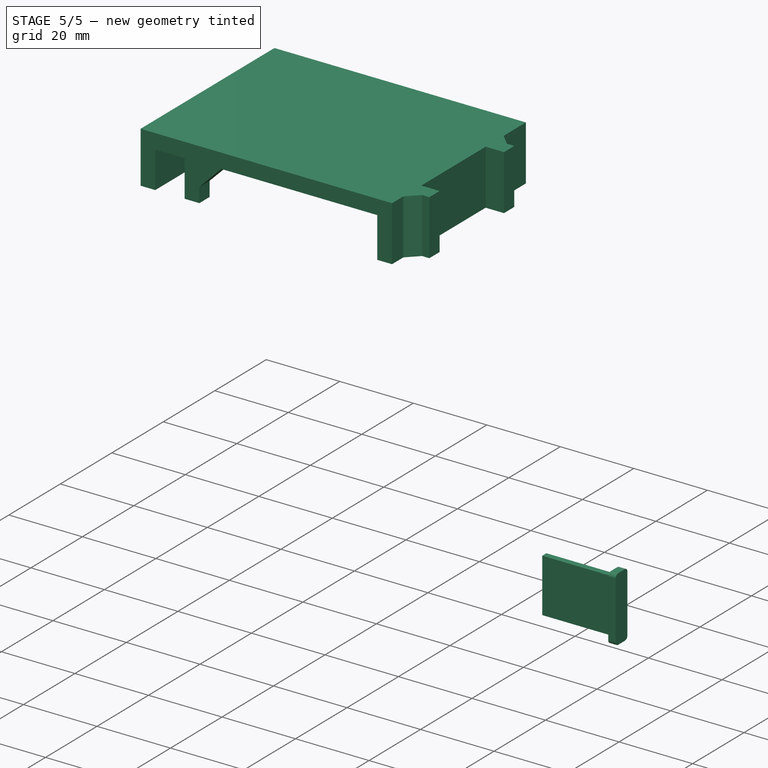
[diagram: stage 5 of 5 — iso view after this stage's code; geometry added in this stage tinted green]
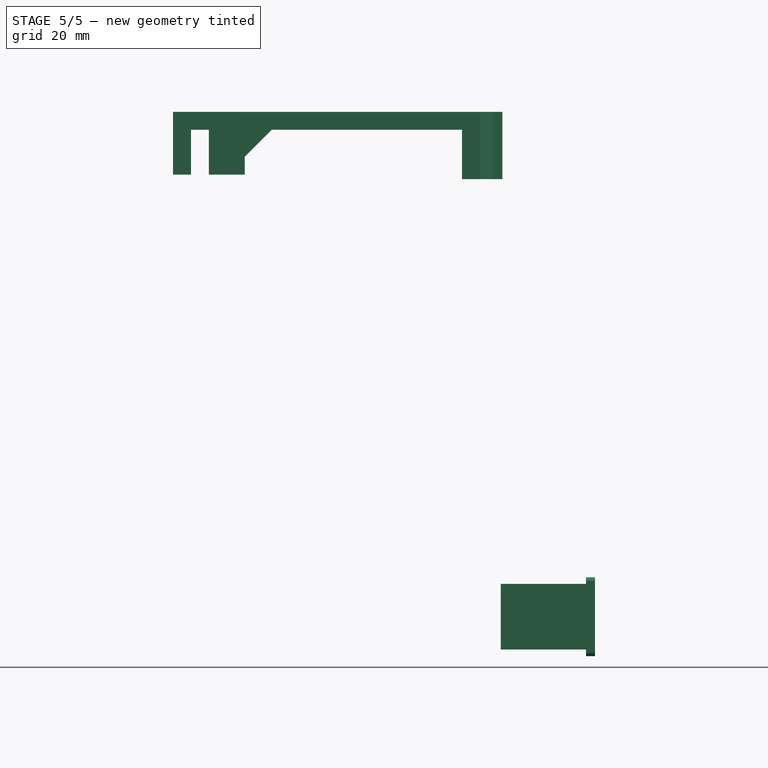
[diagram: stage 5 of 5 — front view after this stage's code; geometry added in this stage tinted green]
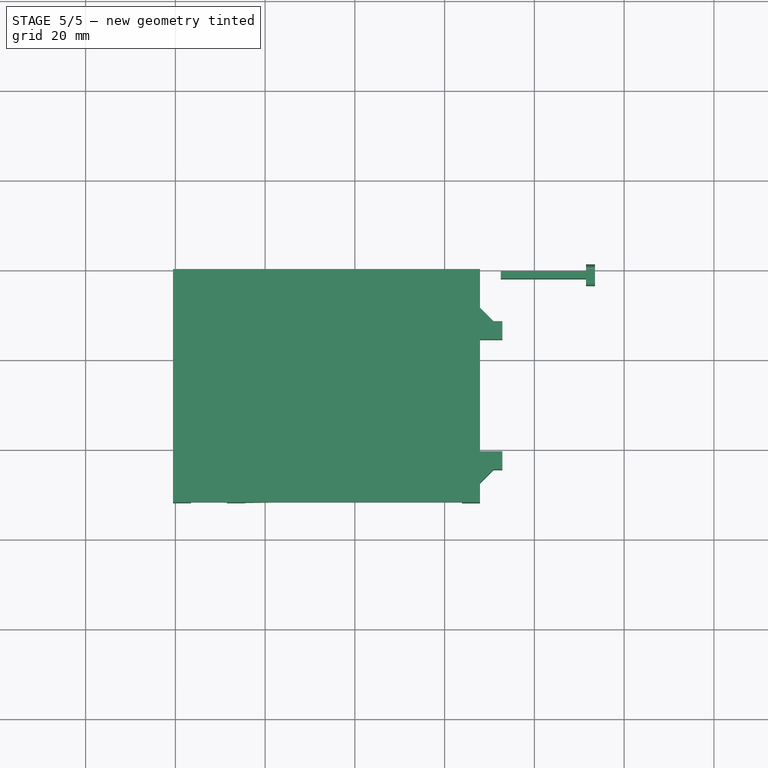
[diagram: stage 5 of 5 — top view after this stage's code; geometry added in this stage tinted green]
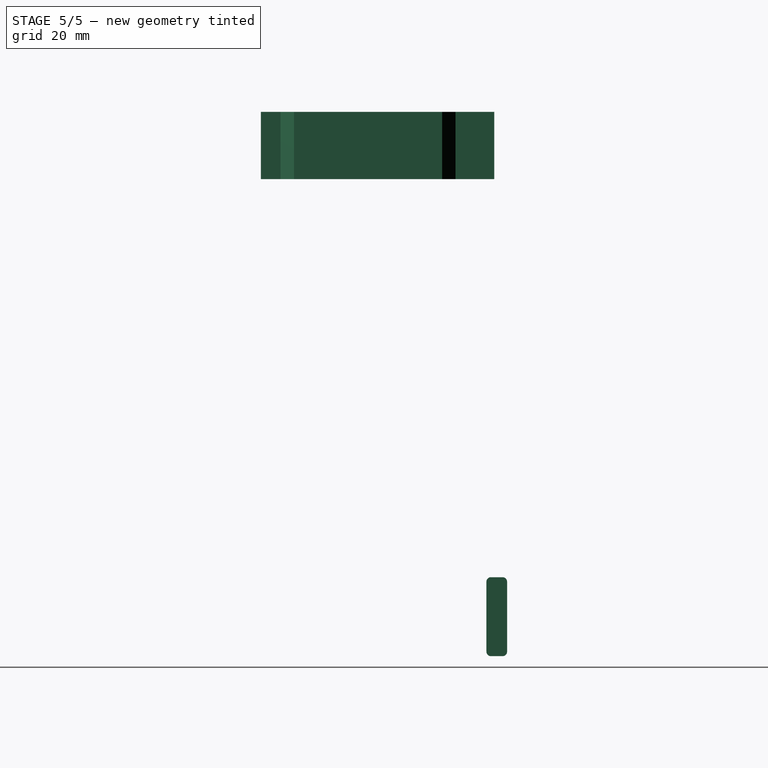
[diagram: stage 5 of 5 — right view after this stage's code; geometry added in this stage tinted green]
FEATURE [PartDesign::SubShapeBinder] Binder011
  BindCopyOnChange = 0
  BindMode = 0
  ClaimChildren = false
  Context = -> Body006 [Binder011.]
  Fuse = false
  MakeFace = true
  OffsetFill = false
  OffsetIntersection = false
  OffsetJoinType = 0
  OffsetOpenResult = false
  PartialLoad = false
  Refine = true
  Relative = true
  Support = -> [Body008]
  _Version = 2
FEATURE [Sketcher::SketchObject] Sketch036
  ArcFitTolerance = 1e-06
  AttachmentSupport = -> [Binder011]
  ExternalGeometry = -> [Binder011]
  ExternalTypes = [0,0,0,0]
  FullyConstrained = true
  MakeInternals = false
  MapMode = 5
  Placement = pos=(-7.5,0,0) rot=(0.57735,0.57735,0.57735;2.0944rad)
  sketch-geometry (6):
    g0: LineSegment StartX=-1.98579 StartY=16.8 StartZ=0 EndX=-1.98579 EndY=2.2 EndZ=0
    g1: LineSegment StartX=-1.98579 StartY=2.2 StartZ=0 EndX=-0.385786 EndY=2.2 EndZ=0
    g2: LineSegment StartX=-0.385786 StartY=2.2 StartZ=0 EndX=-0.385786 EndY=16.8 EndZ=0
    g3: LineSegment StartX=-0.385786 StartY=16.8 StartZ=0 EndX=-1.98579 EndY=16.8 EndZ=0
    g4: LineSegment [constr] StartX=-0.185786 StartY=2 StartZ=0 EndX=-2.18579 EndY=17 EndZ=0
    g5: GeomPoint [constr] X=-1.18579 Y=9.5 Z=0
  constraints (14):
    c: Coincident(g0,g1)
    c: Coincident(g1,g2)
    c: Coincident(g2,g3)
    c: Coincident(g3,g0)
    c: Vertical(g0)
    c: Vertical(g2)
    c: Horizontal(g1)
    c: Horizontal(g3)
    c: Coincident(g4,g-6)
    c: Coincident(g4,g-4)
    c: Symmetric(g4,g4,g5)
    c: Symmetric(g2,g0,g5)
    c: Distance(g-3,g3) = 0.2
    c: Distance(g-5,g2) = 0.2
FEATURE [PartDesign::Pad] Pad024
  Direction = (1,0,0)
  Length = 10
  Length2 = 10
  Offset = -2
  Profile = -> Sketch036
  ReferenceAxis = -> Sketch036 [N_Axis]
  Refine = true
  SideType = 0
  Suppressed = false
  Type = 3
  Type2 = 0
  UpToFace = -> Binder011 [Face6]
FEATURE [Sketcher::SketchObject] Sketch037
  ArcFitTolerance = 1e-06
  AttachmentSupport = -> [Pad024]
  ExternalGeometry = -> [Pad024]
  ExternalTypes = [0]
  FullyConstrained = true
  MakeInternals = false
  MapMode = 5
  Placement = pos=(11.5,0,0) rot=(0.57735,0.57735,0.57735;2.0944rad)
  sketch-geometry (6):
    g0: LineSegment StartX=-3.48579 StartY=18.3 StartZ=0 EndX=-3.48579 EndY=0.7 EndZ=0
    g1: LineSegment StartX=-3.48579 StartY=0.7 StartZ=0 EndX=1.11421 EndY=0.7 EndZ=0
    g2: LineSegment StartX=1.11421 StartY=0.7 StartZ=0 EndX=1.11421 EndY=18.3 EndZ=0
    g3: LineSegment StartX=1.11421 StartY=18.3 StartZ=0 EndX=-3.48579 EndY=18.3 EndZ=0
    g4: LineSegment [constr] StartX=-1.98579 StartY=16.8 StartZ=0 EndX=-0.385786 EndY=2.2 EndZ=0
    g5: GeomPoint [constr] X=-1.18579 Y=9.5 Z=0
  constraints (14):
    c: Coincident(g0,g1)
    c: Coincident(g1,g2)
    c: Coincident(g2,g3)
    c: Coincident(g3,g0)
    c: Vertical(g0)
    c: Vertical(g2)
    c: Horizontal(g1)
    c: Horizontal(g3)
    c: Coincident(g4,g-6)
    c: Coincident(g4,g-4)
    c: Symmetric(g4,g4,g5)
    c: Symmetric(g0,g2,g5)
    c: Distance(g3,g-5) = 1.5
    c: Distance(g2,g-4) = 1.5
FEATURE [PartDesign::Pad] Pad025
  BaseFeature = -> Pad024
  Direction = (1,0,0)
  Length = 2
  Length2 = 10
  Profile = -> Sketch037
  ReferenceAxis = -> Sketch037 [N_Axis]
  Refine = true
  SideType = 0
  Suppressed = false
  Type = 0
  Type2 = 0
FEATURE [PartDesign::Fillet] Fillet003
  Base = -> Pad025 [Edge17,Edge20,Edge18,Edge22]
  BaseFeature = -> Pad025
  Radius = 1
  Refine = true
  SupportTransform = false
  Suppressed = false
  UseAllEdges = false
FEATURE [PartDesign::Body] Body007  label="encoder_holder"
  AllowCompound = true
  Group = -> [Binder013,Binder010,Sketch038,Pad026,Sketch039,Pad027,Sketch040,Pad028,Sketch041,Pad029,Sketch042,Pocket006,Fillet004]
  Origin = -> Origin015
  Tip = -> Fillet004
FEATURE [App::Link] Link  label="bearing002"
  LinkPlacement = pos=(0,0,2.5) rot=(0,0,1;0rad)
  LinkedObject = -> Body002
  Placement = pos=(0,0,2.5) rot=(0,0,1;0rad)
FEATURE [App::Link] Link001  label="rotor002"
  LinkPlacement = pos=(0,0,2.5) rot=(0,0,1;0rad)
  LinkedObject = -> Body003
  Placement = pos=(0,0,2.5) rot=(0,0,1;0rad)
FEATURE [App::Link] Link002  label="mirror_holder_adapter002"
  LinkPlacement = pos=(0,0,2.5) rot=(0,0,1;0rad)
  LinkedObject = -> Body004
  Placement = pos=(0,0,2.5) rot=(0,0,1;0rad)
FEATURE [App::Link] Link004  label="mirrors002"
  LinkPlacement = pos=(0,0,2.5) rot=(0,0,1.23384;1.5708rad)
  LinkedObject = -> Body014
  Placement = pos=(0,0,2.5) rot=(0,0,1.23384;1.5708rad)
FEATURE [App::Link] Link005  label="encoder_holder002"
  LinkPlacement = pos=(0.0345434,2.8721e-12,-4.582e-13) rot=(0,0,1;0rad)
  LinkedObject = -> Body007
  Placement = pos=(0.0345434,2.8721e-12,-4.582e-13) rot=(0,0,1;0rad)
FEATURE [App::Link] Link006  label="base002"
  LinkedObject = -> Body
FEATURE [App::Link] Link008  label="Assembly008"
  LinkPlacement = pos=(-64.5314,-29.7373,64.5314) rot=(0.707107,0,0.707107;3.14159rad)
  LinkedObject = -> Assembly001
  Placement = pos=(-64.5314,-29.7373,64.5314) rot=(0.707107,0,0.707107;3.14159rad)
FEATURE [App::Point] Origin022  label="Origin030"
  Role = Origin
FEATURE [PartDesign::SubShapeBinder] Binder014
  BindCopyOnChange = 0
  BindMode = 0
  ClaimChildren = false
  Context = -> Body009 [Binder014.]
  Fuse = false
  MakeFace = true
  OffsetFill = false
  OffsetIntersection = false
  OffsetJoinType = 0
  OffsetOpenResult = false
  PartialLoad = false
  Refine = true
  Relative = true
  Support = -> [Assembly002]
  _Version = 2
FEATURE [Sketcher::SketchObject] Sketch047
  ArcFitTolerance = 1e-06
  AttachmentOffset = pos=(0,0,0) rot=(0,0,1;1.5708rad)
  AttachmentSupport = -> [Binder014]
  ExternalGeometry = -> [Binder014]
  ExternalTypes = [0,0,0,0,0]
  FullyConstrained = true
  MakeInternals = false
  MapMode = 45
  Placement = pos=(1.32e-14,-2.28733e-11,-8) rot=(0,0,1;3.14159rad)
  sketch-geometry (4):
    g0: LineSegment StartX=76.5314 StartY=53.7373 StartZ=0 EndX=-53.2307 EndY=53.7373 EndZ=0
    g1: LineSegment StartX=-53.2307 StartY=53.7373 StartZ=0 EndX=-53.2307 EndY=-24 EndZ=0
    g2: LineSegment StartX=-53.2307 StartY=-24 StartZ=0 EndX=76.5314 EndY=-24 EndZ=0
    g3: LineSegment StartX=76.5314 StartY=-24 StartZ=0 EndX=76.5314 EndY=53.7373 EndZ=0
  constraints (12):
    c: Coincident(g0,g1)
    c: Coincident(g1,g2)
    c: Coincident(g2,g3)
    c: Coincident(g3,g0)
    c: Horizontal(g0)
    c: Horizontal(g2)
    c: Vertical(g1)
    c: Vertical(g3)
    c: Distance(g-5,g0) = 4
    c: Distance(g-5,g3) = 4
    c: PointOnObject(g-7,g1)
    c: Distance(g-7,g1) = 4
FEATURE [PartDesign::Pad] Pad032
  Direction = (0,0,1)
  Length = 5
  Length2 = 10
  Profile = -> Sketch047
  ReferenceAxis = -> Sketch047 [N_Axis]
  Refine = true
  Reversed = true
  SideType = 0
  Suppressed = false
  Type = 0
  Type2 = 0
FEATURE [Sketcher::SketchObject] Sketch048
  ArcFitTolerance = 1e-06
  AttachmentSupport = -> [Pad032]
  ExternalGeometry = -> [Pad032,Binder014]
  ExternalTypes = [0,0]
  FullyConstrained = true
  MakeInternals = false
  MapMode = 5
  Placement = pos=(0,0,-8) rot=(0,0,1;0rad)
  sketch-geometry (4):
    g0: LineSegment StartX=-76.5314 StartY=24 StartZ=0 EndX=-76.5314 EndY=-53.7373 EndZ=0
    g1: LineSegment StartX=-76.5314 StartY=-53.7373 StartZ=0 EndX=-72.5314 EndY=-53.7373 EndZ=0
    g2: LineSegment StartX=-72.5314 StartY=-53.7373 StartZ=0 EndX=-72.5314 EndY=24 EndZ=0
    g3: LineSegment StartX=-72.5314 StartY=24 StartZ=0 EndX=-76.5314 EndY=24 EndZ=0
  constraints (10):
    c: Coincident(g0,g1)
    c: Coincident(g1,g2)
    c: Coincident(g2,g3)
    c: Coincident(g3,g0)
    c: Vertical(g2)
    c: Horizontal(g1)
    c: Horizontal(g3)
    c: Coincident(g0,g-3)
    c: Coincident(g0,g-3)
    c: PointOnObject(g-4,g2)
FEATURE [PartDesign::Pad] Pad033
  BaseFeature = -> Pad032
  Direction = (0,0,1)
  Length = 126
  Length2 = 10
  Profile = -> Sketch048
  ReferenceAxis = -> Sketch048 [N_Axis]
  Refine = true
  SideType = 0
  Suppressed = false
  Type = 0
  Type2 = 0
FEATURE [Sketcher::SketchObject] Sketch049
  ArcFitTolerance = 1e-06
  AttachmentSupport = -> [Pad033]
  ExternalGeometry = -> [Binder014,Pad033]
  ExternalTypes = [0,0,0,0,0]
  FullyConstrained = true
  MakeInternals = false
  MapMode = 5
  Placement = pos=(0,0,-8) rot=(0,0,1;0rad)
  sketch-geometry (8):
    g0: LineSegment StartX=53.2307 StartY=24 StartZ=0 EndX=-57.2307 EndY=24 EndZ=0
    g1: LineSegment StartX=53.2307 StartY=20 StartZ=0 EndX=-53.2307 EndY=20 EndZ=0
    g2: LineSegment StartX=53.2307 StartY=20 StartZ=0 EndX=53.2307 EndY=24 EndZ=0
    g3: LineSegment StartX=-53.2307 StartY=20 StartZ=0 EndX=-53.2307 EndY=-20 EndZ=0
    g4: LineSegment StartX=-53.2307 StartY=-20 StartZ=0 EndX=53.2307 EndY=-20 EndZ=0
    g5: LineSegment StartX=53.2307 StartY=-20 StartZ=0 EndX=53.2307 EndY=-24 EndZ=0
    g6: LineSegment StartX=53.2307 StartY=-24 StartZ=0 EndX=-57.2307 EndY=-24 EndZ=0
    g7: LineSegment StartX=-57.2307 StartY=-24 StartZ=0 EndX=-57.2307 EndY=24 EndZ=0
  constraints (19):
    c: Coincident(g0,g-7)
    c: PointOnObject(g0,g-7)
    c: Coincident(g1,g-5)
    c: Coincident(g1,g-6)
    c: Coincident(g2,g1)
    c: Coincident(g2,g0)
    c: Coincident(g3,g1)
    c: Coincident(g3,g-3)
    c: Coincident(g4,g3)
    c: Coincident(g4,g-4)
    c: Coincident(g5,g4)
    c: Vertical(g5)
    c: Coincident(g6,g5)
    c: Horizontal(g6)
    c: Coincident(g7,g6)
    c: Coincident(g7,g0)
    c: Vertical(g7)
    c: Distance(g1,g7) = 4
    c: Distance(g3,g6) = 4
FEATURE [PartDesign::Pad] Pad034
  BaseFeature = -> Pad033
  Direction = (0,0,1)
  Length = 4
  Length2 = 10
  Profile = -> Sketch049
  ReferenceAxis = -> Sketch049 [N_Axis]
  Refine = true
  SideType = 0
  Suppressed = false
  Type = 0
  Type2 = 0
FEATURE [Sketcher::SketchObject] Sketch050
  ArcFitTolerance = 1e-06
  AttachmentSupport = -> [Pad034]
  ExternalGeometry = -> [Pad034,Binder014]
  ExternalTypes = [0,0,0,0,0]
  FullyConstrained = true
  MakeInternals = false
  MapMode = 5
  Placement = pos=(-72.5314,0,0) rot=(0.57735,0.57735,0.57735;2.0944rad)
  sketch-geometry (10):
    g0: LineSegment [constr] StartX=-49.7373 StartY=117.762 StartZ=0 EndX=-49.7373 EndY=118 EndZ=0
    g1: LineSegment [constr] StartX=-9.73726 StartY=117.762 StartZ=0 EndX=-9.73726 EndY=118 EndZ=0
    g2: LineSegment StartX=-49.7373 StartY=118 StartZ=0 EndX=-53.7373 EndY=118 EndZ=0
    g3: LineSegment StartX=-53.7373 StartY=118 StartZ=0 EndX=-53.7373 EndY=7.30072 EndZ=0
    g4: LineSegment StartX=-49.7373 StartY=11.3007 StartZ=0 EndX=-49.7373 EndY=118 EndZ=0
    g5: LineSegment StartX=-49.7373 StartY=11.3007 StartZ=0 EndX=-9.73726 EndY=11.3007 EndZ=0
    g6: LineSegment StartX=-9.73726 StartY=11.3007 StartZ=0 EndX=-9.73726 EndY=118 EndZ=0
    g7: LineSegment StartX=-53.7373 StartY=7.30072 StartZ=0 EndX=-5.73726 EndY=7.30072 EndZ=0
    g8: LineSegment StartX=-5.73726 StartY=7.30072 StartZ=0 EndX=-5.73726 EndY=118 EndZ=0
    g9: LineSegment StartX=-9.73726 StartY=118 StartZ=0 EndX=-5.73726 EndY=118 EndZ=0
  constraints (25):
    c: Coincident(g0,g-4)
    c: PointOnObject(g0,g-3)
    c: Vertical(g0)
    c: Coincident(g1,g-5)
    c: PointOnObject(g1,g-3)
    c: Vertical(g1)
    c: Coincident(g2,g0)
    c: Coincident(g2,g-3)
    c: Coincident(g3,g2)
    c: Vertical(g3)
    c: Coincident(g4,g-7)
    c: Coincident(g4,g0)
    c: Coincident(g5,g4)
    c: Coincident(g5,g-6)
    c: Coincident(g6,g5)
    c: Coincident(g6,g1)
    c: Coincident(g7,g3)
    c: Horizontal(g7)
    c: Coincident(g8,g7)
    c: PointOnObject(g8,g-3)
    c: Vertical(g8)
    c: Distance(g5,g8) = 4
    c: Distance(g5,g7) = 4
    c: Coincident(g9,g1)
    c: Coincident(g9,g8)
FEATURE [PartDesign::Pad] Pad035
  BaseFeature = -> Pad034
  Direction = (1,0,0)
  Length = 4
  Length2 = 10
  Profile = -> Sketch050
  ReferenceAxis = -> Sketch050 [N_Axis]
  Refine = true
  SideType = 0
  Suppressed = false
  Type = 0
  Type2 = 0
FEATURE [Sketcher::SketchObject] Sketch065
  ArcFitTolerance = 1e-06
  AttachmentSupport = -> [Pocket016]
  ExternalGeometry = -> [Pocket016]
  ExternalTypes = [0,0,0]
  FullyConstrained = true
  MakeInternals = false
  MapMode = 5
  Placement = pos=(0,-16,0) rot=(1,0,0;1.5708rad)
  sketch-geometry (12):
    g0: LineSegment [constr] StartX=25 StartY=9e-16 StartZ=0 EndX=20 EndY=9e-16 EndZ=0
    g1: LineSegment [constr] StartX=20 StartY=9e-16 StartZ=0 EndX=20 EndY=5 EndZ=0
    g2: LineSegment StartX=20 StartY=5 StartZ=0 EndX=25 EndY=5 EndZ=0
    g3: LineSegment StartX=25 StartY=5 StartZ=0 EndX=25 EndY=20 EndZ=0
    g4: LineSegment StartX=25 StartY=20 StartZ=0 EndX=20 EndY=20 EndZ=0
    g5: LineSegment StartX=20 StartY=20 StartZ=0 EndX=20 EndY=5 EndZ=0
    g6: LineSegment [constr] StartX=0 StartY=9e-16 StartZ=0 EndX=5 EndY=9e-16 EndZ=0
    g7: LineSegment [constr] StartX=5 StartY=9e-16 StartZ=0 EndX=5 EndY=5 EndZ=0
    g8: LineSegment StartX=5 StartY=5 StartZ=0 EndX=5 EndY=20 EndZ=0
    g9: LineSegment StartX=5 StartY=20 StartZ=0 EndX=0 EndY=20 EndZ=0
    g10: LineSegment StartX=0 StartY=20 StartZ=0 EndX=0 EndY=5 EndZ=0
    g11: LineSegment StartX=0 StartY=5 StartZ=0 EndX=5 EndY=5 EndZ=0
  constraints (32):
    c: Distance(g0) = 5
    c: Coincident(g0,g-5)
    c: PointOnObject(g0,g-4)
    c: Distance(g1) = 5
    c: Angle(g-1,g1) = 1.5708
    c: Coincident(g1,g0)
    c: Coincident(g2,g3)
    c: Coincident(g3,g4)
    c: Coincident(g4,g5)
    c: Coincident(g5,g2)
    c: Horizontal(g2)
    c: Horizontal(g4)
    c: Vertical(g3)
    c: Vertical(g5)
    c: Coincident(g2,g1)
    c: Coincident(g3,g-5)
    c: Distance(g6) = 5
    c: Coincident(g6,g-4)
    c: PointOnObject(g6,g-4)
    c: Distance(g7) = 5
    c: Angle(g-1,g7) = 1.5708
    c: Coincident(g7,g6)
    c: Coincident(g8,g9)
    c: Coincident(g9,g10)
    c: Coincident(g10,g11)
    c: Coincident(g11,g8)
    c: Vertical(g8)
    c: Vertical(g10)
    c: Horizontal(g9)
    c: Horizontal(g11)
    c: Coincident(g8,g7)
    c: Coincident(g9,g-3)
FEATURE [PartDesign::Pocket] Pocket017
  BaseFeature = -> Pocket016
  Direction = (0,1,-2e-16)
  Length = 5
  Length2 = 5
  Profile = -> Sketch065
  ReferenceAxis = -> Sketch065 [N_Axis]
  Refine = true
  SideType = 0
  Suppressed = false
  Type = 1
  Type2 = 0
FEATURE [Sketcher::SketchObject] Sketch068
  ArcFitTolerance = 1e-06
  AttachmentOffset = pos=(0,0,7.5) rot=(0,0,1;0rad)
  AttachmentSupport = -> [Clone005]
  ExternalGeometry = -> [Clone005]
  ExternalTypes = [0,0]
  FullyConstrained = true
  MakeInternals = false
  MapMode = 5
  Placement = pos=(0,0,61.9) rot=(0,0,-1;1.5708rad)
  sketch-geometry (5):
    g0: LineSegment [constr] StartX=-5.43467 StartY=-5.17193 StartZ=0 EndX=5.17193 EndY=5.43467 EndZ=0
    g1: GeomPoint [constr] X=-0.131371 Y=0.131371 Z=0
    g2: LineSegment StartX=-0.131371 StartY=0.131371 StartZ=0 EndX=99.8686 EndY=0.131371 EndZ=0
    g3: LineSegment StartX=-0.131371 StartY=0.131371 StartZ=0 EndX=-0.131371 EndY=-99.8686 EndZ=0
    g4: LineSegment StartX=-0.131371 StartY=0.131371 StartZ=0 EndX=70.5793 EndY=-70.5793 EndZ=0
  constraints (13):
    c: PointOnObject(g0,g-3)
    c: Symmetric(g0,g0,g1)
    c: Coincident(g0,g-4)
    c: Coincident(g2,g1)
    c: Coincident(g3,g1)
    c: Angle(g3,g2) = 1.5708
    c: Parallel(g0,g-4)
    c: DistanceX(g2,g2) = 100
    c: DistanceY(g3,g3) = 100
    c: Angle(g0,g3) = 0.785398
    c: Distance(g4) = 100
    c: Coincident(g4,g1)
    c: Angle(g3,g4) = 0.785398
FEATURE [PartDesign::Body] Body014  label="mirrors_with_points_and_lines"
  AllowCompound = false
  Group = -> [Clone005,Sketch068]
  Origin = -> Origin031
  Tip = -> Clone005
FEATURE [Sketcher::SketchObject] Sketch069
  ArcFitTolerance = 1e-06
  AttachmentSupport = -> [Pocket017]
  ExternalGeometry = -> [Pocket017]
  ExternalTypes = [0]
  FullyConstrained = true
  MakeInternals = false
  MapMode = 5
  Placement = pos=(0,-16,0) rot=(1,0,0;1.5708rad)
  sketch-geometry (1):
    g0: GeomPoint X=12.5 Y=12 Z=0
  constraints (1):
    c: Coincident(g0,g-3)
FEATURE [PartDesign::Body] Body013  label="laser_diode"
  AllowCompound = false
  Group = -> [Sketch063,Pad042,Sketch064,Pocket016,Sketch065,Pocket017,Sketch069]
  Origin = -> Origin029
  Tip = -> Pocket017
FEATURE [App::Link] Link015  label="Assembly009"
  LinkedObject = -> Assembly001
FEATURE [Part::FeaturePython] Parts001  # WARN: FeaturePython — macro-defined, semantics opaque (R4)
  Group = -> [Link008,Link014,Link015]
  GroupMode = 0
FEATURE [PartDesign::SubShapeBinder] Binder016
  BindCopyOnChange = 0
  BindMode = 0
  ClaimChildren = false
  Context = -> Body012 [Binder016.]
  Fuse = false
  MakeFace = true
  OffsetFill = false
  OffsetIntersection = false
  OffsetJoinType = 0
  OffsetOpenResult = false
  PartialLoad = false
  Refine = true
  Relative = true
  Support = -> [Body009]
  _Version = 2
FEATURE [PartDesign::SubShapeBinder] Binder017
  BindCopyOnChange = 0
  BindMode = 0
  ClaimChildren = false
  Context = -> Body012 [Binder017.]
  Fuse = false
  MakeFace = true
  OffsetFill = false
  OffsetIntersection = false
  OffsetJoinType = 0
  OffsetOpenResult = false
  PartialLoad = false
  Refine = true
  Relative = true
  Support = -> [Assembly002]
  _Version = 2
FEATURE [Sketcher::SketchObject] Sketch060
  ArcFitTolerance = 1e-06
  AttachmentSupport = -> [Binder016]
  ExternalGeometry = -> [Binder017,Binder016]
  ExternalTypes = [0,0,0,0]
  FullyConstrained = true
  MakeInternals = false
  MapMode = 5
  Placement = pos=(1.726e-13,0,118) rot=(0,0,1;0rad)
  sketch-geometry (4):
    g0: LineSegment StartX=-80.5314 StartY=-53.7373 StartZ=0 EndX=-12.1314 EndY=-53.7373 EndZ=0
    g1: LineSegment StartX=-12.1314 StartY=-53.7373 StartZ=0 EndX=-12.1314 EndY=-1.73726 EndZ=0
    g2: LineSegment StartX=-12.1314 StartY=-1.73726 StartZ=0 EndX=-80.5314 EndY=-1.73726 EndZ=0
    g3: LineSegment StartX=-80.5314 StartY=-1.73726 StartZ=0 EndX=-80.5314 EndY=-53.7373 EndZ=0
  constraints (12):
    c: Horizontal(g0)
    c: Coincident(g1,g0)
    c: Vertical(g1)
    c: Coincident(g2,g1)
    c: Horizontal(g2)
    c: Coincident(g3,g2)
    c: Coincident(g3,g0)
    c: Vertical(g3)
    c: PointOnObject(g-4,g1)
    c: PointOnObject(g-5,g0)
    c: Distance(g-5,g3) = 4
    c: Distance(g-6,g2) = 4
FEATURE [PartDesign::Pad] Pad039
  Direction = (1.5e-15,0,1)
  Length = 4
  Length2 = 10
  Profile = -> Sketch060
  ReferenceAxis = -> Sketch060 [N_Axis]
  Refine = true
  SideType = 0
  Suppressed = false
  Type = 0
  Type2 = 0
FEATURE [Sketcher::SketchObject] Sketch061
  ArcFitTolerance = 1e-06
  AttachmentSupport = -> [Pad039]
  ExternalGeometry = -> [Pad039,Binder016]
  ExternalTypes = [0,0,0,0,0,0,0]
  FullyConstrained = true
  MakeInternals = false
  MapMode = 5
  Placement = pos=(1.716e-13,0,118) rot=(1,0,0;3.14159rad)
  sketch-geometry (12):
    g0: LineSegment StartX=-76.5314 StartY=1.73726 StartZ=0 EndX=-76.5314 EndY=53.7373 EndZ=0
    g1: LineSegment StartX=-76.5314 StartY=53.7373 StartZ=0 EndX=-80.5314 EndY=53.7373 EndZ=0
    g2: LineSegment StartX=-80.5314 StartY=53.7373 StartZ=0 EndX=-80.5314 EndY=1.73726 EndZ=0
    g3: LineSegment StartX=-80.5314 StartY=1.73726 StartZ=0 EndX=-76.5314 EndY=1.73726 EndZ=0
    g4: LineSegment StartX=-72.5314 StartY=5.73726 StartZ=0 EndX=-72.5314 EndY=1.73726 EndZ=0
    g5: LineSegment StartX=-72.5314 StartY=1.73726 StartZ=0 EndX=-68.5314 EndY=1.73726 EndZ=0
    g6: LineSegment StartX=-68.5314 StartY=1.73726 StartZ=0 EndX=-68.5314 EndY=5.73726 EndZ=0
    g7: LineSegment StartX=-68.5314 StartY=5.73726 StartZ=0 EndX=-72.5314 EndY=5.73726 EndZ=0
    g8: LineSegment StartX=-68.5314 StartY=49.7373 StartZ=0 EndX=-64.5314 EndY=49.7373 EndZ=0
    g9: LineSegment StartX=-64.5314 StartY=49.7373 StartZ=0 EndX=-64.5314 EndY=53.7373 EndZ=0
    g10: LineSegment StartX=-64.5314 StartY=53.7373 StartZ=0 EndX=-68.5314 EndY=53.7373 EndZ=0
    g11: LineSegment StartX=-68.5314 StartY=53.7373 StartZ=0 EndX=-68.5314 EndY=49.7373 EndZ=0
  constraints (30):
    c: Coincident(g0,g1)
    c: Coincident(g1,g2)
    c: Coincident(g2,g3)
    c: Coincident(g3,g0)
    c: Vertical(g0)
    c: Horizontal(g3)
    c: Coincident(g4,g5)
    c: Coincident(g5,g6)
    c: Coincident(g6,g7)
    c: Coincident(g7,g4)
    c: Vertical(g4)
    c: Vertical(g6)
    c: Horizontal(g5)
    c: Coincident(g4,g-9)
    c: PointOnObject(g5,g-4)
    c: Coincident(g6,g-9)
    c: Coincident(g8,g9)
    c: Coincident(g9,g10)
    c: Coincident(g10,g11)
    c: Coincident(g11,g8)
    c: Horizontal(g8)
    c: Horizontal(g10)
    c: Vertical(g9)
    c: Vertical(g11)
    c: Distance(g9,g11) = 4
    c: Coincident(g8,g-7)
    c: PointOnObject(g9,g-6)
    c: Coincident(g0,g-5)
    c: Coincident(g1,g-6)
    c: Coincident(g-4,g2)
FEATURE [PartDesign::Pad] Pad040
  BaseFeature = -> Pad039
  Direction = (0,0,-1)
  Length = 10
  Length2 = 10
  Profile = -> Sketch061
  ReferenceAxis = -> Sketch061 [N_Axis]
  Refine = true
  SideType = 0
  Suppressed = false
  Type = 0
  Type2 = 0
FEATURE [Sketcher::SketchObject] Sketch066
  ArcFitTolerance = 1e-06
  AttachmentSupport = -> [Pad040]
  ExternalGeometry = -> [Pad040]
  ExternalTypes = [0,0,0]
  FullyConstrained = true
  MakeInternals = false
  MapMode = 5
  Placement = pos=(1.774e-13,0,122) rot=(0,0,1;0rad)
  sketch-geometry (4):
    g0: LineSegment StartX=-12.1314 StartY=-1.73726 StartZ=0 EndX=-16.1314 EndY=-1.73726 EndZ=0
    g1: LineSegment StartX=-16.1314 StartY=-1.73726 StartZ=0 EndX=-16.1314 EndY=-53.7373 EndZ=0
    g2: LineSegment StartX=-16.1314 StartY=-53.7373 StartZ=0 EndX=-12.1314 EndY=-53.7373 EndZ=0
    g3: LineSegment StartX=-12.1314 StartY=-53.7373 StartZ=0 EndX=-12.1314 EndY=-1.73726 EndZ=0
  constraints (10):
    c: Coincident(g0,g1)
    c: Coincident(g1,g2)
    c: Coincident(g2,g3)
    c: Coincident(g3,g0)
    c: Horizontal(g0)
    c: Horizontal(g2)
    c: Vertical(g1)
    c: Distance(g1,g3) = 4
    c: Coincident(g0,g-4)
    c: Coincident(g-5,g2)
FEATURE [PartDesign::Pad] Pad043
  BaseFeature = -> Pad040
  Direction = (1.5e-15,0,1)
  Length = 15
  Length2 = 10
  Profile = -> Sketch066
  ReferenceAxis = -> Sketch066 [N_Axis]
  Refine = true
  Reversed = true
  SideType = 0
  Suppressed = false
  Type = 0
  Type2 = 0
FEATURE [Sketcher::SketchObject] Sketch067
  ArcFitTolerance = 1e-06
  AttachmentSupport = -> [Pad043]
  ExternalGeometry = -> [Pad043,Binder017]
  ExternalTypes = [0,0,0,0]
  FullyConstrained = true
  MakeInternals = false
  MapMode = 5
  Placement = pos=(-12.1314,0,2.82e-14) rot=(0.57735,0.57735,0.57735;2.0944rad)
  sketch-geometry (8):
    g0: LineSegment StartX=-46.3686 StartY=107 StartZ=0 EndX=-46.3686 EndY=122 EndZ=0
    g1: LineSegment StartX=-46.3686 StartY=122 StartZ=0 EndX=-42.3686 EndY=122 EndZ=0
    g2: LineSegment StartX=-42.3686 StartY=122 StartZ=0 EndX=-42.3686 EndY=107 EndZ=0
    g3: LineSegment StartX=-42.3686 StartY=107 StartZ=0 EndX=-46.3686 EndY=107 EndZ=0
    g4: LineSegment StartX=-13.3686 StartY=107 StartZ=0 EndX=-17.3686 EndY=107 EndZ=0
    g5: LineSegment StartX=-17.3686 StartY=107 StartZ=0 EndX=-17.3686 EndY=122 EndZ=0
    g6: LineSegment StartX=-17.3686 StartY=122 StartZ=0 EndX=-13.3686 EndY=122 EndZ=0
    g7: LineSegment StartX=-13.3686 StartY=122 StartZ=0 EndX=-13.3686 EndY=107 EndZ=0
  constraints (24):
    c: Coincident(g0,g1)
    c: Coincident(g1,g2)
    c: Coincident(g2,g3)
    c: Coincident(g3,g0)
    c: Vertical(g0)
    c: Vertical(g2)
    c: Horizontal(g1)
    c: Horizontal(g3)
    c: PointOnObject(g0,g-3)
    c: PointOnObject(g-4,g2)
    c: Distance(g3,g3) = 4
    c: Coincident(g4,g5)
    c: Coincident(g5,g6)
    c: Coincident(g6,g7)
    c: Coincident(g7,g4)
    c: Horizontal(g4)
    c: Horizontal(g6)
    c: Vertical(g5)
    c: Vertical(g7)
    c: PointOnObject(g4,g-3)
    c: PointOnObject(g-5,g5)
    c: Distance(g4,g4) = 4
    c: PointOnObject(g1,g-6)
    c: PointOnObject(g6,g-6)
FEATURE [PartDesign::Pad] Pad044
  BaseFeature = -> Pad043
  Direction = (1,0,-2.2e-15)
  Length = 5
  Length2 = 10
  Profile = -> Sketch067
  ReferenceAxis = -> Sketch067 [N_Axis]
  Refine = true
  SideType = 0
  Suppressed = false
  Type = 0
  Type2 = 0
FEATURE [PartDesign::Body] Body004  label="mirror_holder_adapter"
  AllowCompound = false
  Group = -> [Binder005,Sketch028,Pad019,Sketch029,Pad020,MultiTransform002,Mirror004,Sketch030,Pocket,Sketch070,Pad045]
  Origin = -> Origin009
  Tip = -> Pocket
FEATURE [PartDesign::Chamfer] Chamfer
  Angle = 45
  Base = -> Pad044 [Edge36,Edge35]
  BaseFeature = -> Pad044
  ChamferType = 0
  FlipDirection = false
  Refine = true
  Size = 6
  Size2 = 1
  SupportTransform = false
  Suppressed = false
  UseAllEdges = false
FEATURE [PartDesign::Chamfer] Chamfer001
  Angle = 45
  Base = -> Chamfer [Edge44,Edge79]
  BaseFeature = -> Chamfer
  ChamferType = 0
  FlipDirection = false
  Refine = true
  Size = 3
  Size2 = 1
  SupportTransform = false
  Suppressed = false
  UseAllEdges = false
FEATURE [PartDesign::Body] Body012  label="laser_diode_holder"
  AllowCompound = false
  Group = -> [Sketch060,Pad039,Sketch061,Pad040,Sketch066,Pad043,Sketch067,Pad044,Binder016,Binder017,Chamfer,Chamfer001]
  Origin = -> Origin027
  Tip = -> Chamfer001
FEATURE [Part::FeaturePython] Assembly001  # WARN: FeaturePython — macro-defined, semantics opaque (R4)
  AutoRelax = true
  BuildShape = 0
  Freeze = false
  Group = -> [Constraints,Elements,Parts]
  Verbose = false
  _SolverType = 1
  _Version = 1
FEATURE [App::FeaturePython] Constraints  # WARN: FeaturePython — macro-defined, semantics opaque (R4)
  Group = -> [Constraint002,Constraint,Constraint005,Constraint009,Constraint010,Constraint011,Constraint012,Constraint013,Constraint014,Constraint015,Constraint020]
  _Version = 1
FEATURE [App::FeaturePython] Elements  # WARN: FeaturePython — macro-defined, semantics opaque (R4)
  Group = -> [_Element001,_Element003,_Element004,_Element006,_Element008,_Element009,_Element,_Element010,_Element011,_Element012,_Element013,_Element014,_Element015,_Element016,_Element017,_Element018,_Element019,_Element020,_Element021,_Element022,_Element023,_Element024,_Element025,_Element026,_Element027,_Element028,_Element029,_Element030,_Element031,Element,_Element036,_Element039,Element002,Element003,+2 more]
FEATURE [Part::FeaturePython] Assembly002  # WARN: FeaturePython — macro-defined, semantics opaque (R4)
  AutoRelax = true
  BuildShape = 0
  Freeze = false
  Group = -> [Constraints001,Elements001,Parts001]
  Verbose = false
  _SolverType = 1
  _Version = 1
FEATURE [App::FeaturePython] Constraints001  # WARN: FeaturePython — macro-defined, semantics opaque (R4)
  Group = -> [Constraint021,Constraint022,Constraint023,Constraint024,Constraint025,Constraint026]
  _Version = 1
FEATURE [App::FeaturePython] Elements001  # WARN: FeaturePython — macro-defined, semantics opaque (R4)
  Group = -> [_Element040,_Element041,_Element042,_Element043,_Element044,_Element045,_Element046,_Element047,_Element048,_Element049]
FEATURE [Part::FeaturePython] _Element001  # link proxy (typed FeaturePython)
  Detach = false
  LinkTransform = true
  LinkedObject = -> Link [Pad001.Face3]
  _Parent = -> Elements
FEATURE [App::FeaturePython] Constraint002  label="PlaneCoincident008"  # WARN: FeaturePython — macro-defined, semantics opaque (R4)
  Angle = 0
  AnglePitch = 0
  AngleRoll = 0
  Cascade = false
  Disabled = false
  Group = -> [ElementLink003,ElementLink004]
  LockAngle = false
  Multiply = false
  OffsetX = 0
  OffsetY = 0
  _ConstraintType = 35
  _Parent = -> Constraints
FEATURE [App::FeaturePython] ElementLink003  label="_Element003"  # link proxy (typed FeaturePython)
  LinkTransform = true
  LinkedObject = -> _Element003
  _Parent = -> Constraint002
FEATURE [Part::FeaturePython] _Element003  # link proxy (typed FeaturePython)
  Detach = false
  LinkTransform = true
  LinkedObject = -> Link001 [Fillet.Face51]
  _Parent = -> Elements
FEATURE [App::FeaturePython] ElementLink004  label="_Element004"  # link proxy (typed FeaturePython)
  LinkTransform = true
  LinkedObject = -> _Element004
  _Parent = -> Constraint002
FEATURE [Part::FeaturePython] _Element004  # link proxy (typed FeaturePython)
  Detach = false
  LinkTransform = true
  LinkedObject = -> Link [Pad001.Face4]
  _Parent = -> Elements
FEATURE [Part::FeaturePython] _Element006  # link proxy (typed FeaturePython)
  Detach = false
  LinkTransform = true
  LinkedObject = -> Link001 [Fillet.Face9]
  _Parent = -> Elements
FEATURE [Part::FeaturePython] _Element008  # link proxy (typed FeaturePython)
  Detach = false
  LinkTransform = true
  LinkedObject = -> Link005 [Fillet004.Face12]
  _Parent = -> Elements
FEATURE [Part::FeaturePython] _Element009  # link proxy (typed FeaturePython)
  Detach = false
  LinkTransform = true
  LinkedObject = -> Link005 [Fillet004.Face2]
  _Parent = -> Elements
FEATURE [App::FeaturePython] Constraint  label="Locked001"  # WARN: FeaturePython — macro-defined, semantics opaque (R4)
  Disabled = false
  Group = -> [ElementLink]
  _ConstraintType = 0
  _Parent = -> Constraints
FEATURE [App::FeaturePython] ElementLink  label="_Element"  # link proxy (typed FeaturePython)
  LinkTransform = true
  LinkedObject = -> _Element
  _Parent = -> Constraint
FEATURE [Part::FeaturePython] _Element  # link proxy (typed FeaturePython)
  Detach = false
  LinkTransform = true
  LinkedObject = -> Link006 [Boolean.Face33]
  _Parent = -> Elements
FEATURE [Part::FeaturePython] _Element010  # link proxy (typed FeaturePython)
  Detach = false
  LinkTransform = true
  LinkedObject = -> Link010 [Pad038.Face18]
  _Parent = -> Elements
FEATURE [Part::FeaturePython] _Element011  # link proxy (typed FeaturePython)
  Detach = false
  LinkTransform = true
  LinkedObject = -> Link005 [Fillet004.Face36]
  _Parent = -> Elements
FEATURE [Part::FeaturePython] _Element012  # link proxy (typed FeaturePython)
  Detach = false
  LinkTransform = true
  LinkedObject = -> Link005 [Fillet004.Face8]
  _Parent = -> Elements
FEATURE [Part::FeaturePython] _Element013  # link proxy (typed FeaturePython)
  Detach = false
  LinkTransform = true
  LinkedObject = -> Link006 [Boolean.Face31]
  _Parent = -> Elements
FEATURE [App::FeaturePython] Constraint005  label="PlaneAlignment001"  # WARN: FeaturePython — macro-defined, semantics opaque (R4)
  Angle = 0
  AnglePitch = 0
  AngleRoll = 0
  Cascade = false
  Disabled = false
  Group = -> [ElementLink009,ElementLink010]
  LockAngle = false
  _ConstraintType = 37
  _Parent = -> Constraints
FEATURE [App::FeaturePython] ElementLink009  label="_Element014"  # link proxy (typed FeaturePython)
  LinkTransform = true
  LinkedObject = -> _Element014
  _Parent = -> Constraint005
FEATURE [Part::FeaturePython] _Element014  # link proxy (typed FeaturePython)
  Detach = false
  LinkTransform = true
  LinkedObject = -> Link005 [Fillet004.Face16]
  _Parent = -> Elements
FEATURE [App::FeaturePython] ElementLink010  label="_Element015"  # link proxy (typed FeaturePython)
  LinkTransform = true
  LinkedObject = -> _Element015
  _Parent = -> Constraint005
FEATURE [Part::FeaturePython] _Element015  # link proxy (typed FeaturePython)
  Detach = false
  LinkTransform = true
  LinkedObject = -> Link006 [Boolean.Face2]
  _Parent = -> Elements
FEATURE [Part::FeaturePython] _Element016  # link proxy (typed FeaturePython)
  Detach = false
  LinkTransform = true
  LinkedObject = -> Link011 [Pad038.Face6]
  _Parent = -> Elements
FEATURE [Part::FeaturePython] _Element017  # link proxy (typed FeaturePython)
  Detach = false
  LinkTransform = true
  LinkedObject = -> Link005 [Fillet004.Face15]
  _Parent = -> Elements
FEATURE [Part::FeaturePython] _Element018  # link proxy (typed FeaturePython)
  Detach = false
  LinkTransform = true
  LinkedObject = -> Link005 [Fillet004.Edge92]
  _Parent = -> Elements
FEATURE [Part::FeaturePython] _Element019  # link proxy (typed FeaturePython)
  Detach = false
  LinkTransform = true
  LinkedObject = -> Link011 [Pad038.Edge3]
  _Parent = -> Elements
FEATURE [Part::FeaturePython] _Element020  # link proxy (typed FeaturePython)
  Detach = false
  LinkTransform = true
  LinkedObject = -> Link011 [Pad038.Face4]
  _Parent = -> Elements
FEATURE [Part::FeaturePython] _Element021  # link proxy (typed FeaturePython)
  Detach = false
  LinkTransform = true
  LinkedObject = -> Link005 [Fillet004.Face33]
  _Parent = -> Elements
FEATURE [Part::FeaturePython] _Element022  # link proxy (typed FeaturePython)
  Detach = false
  LinkTransform = true
  LinkedObject = -> Link005 [Fillet004.Face37]
  _Parent = -> Elements
FEATURE [Part::FeaturePython] _Element023  # link proxy (typed FeaturePython)
  Detach = false
  LinkTransform = true
  LinkedObject = -> Link010 [Pad038.Face4]
  _Parent = -> Elements
FEATURE [Part::FeaturePython] _Element024  # link proxy (typed FeaturePython)
  Detach = false
  LinkTransform = true
  LinkedObject = -> Link005 [Fillet004.Face29]
  _Parent = -> Elements
FEATURE [App::FeaturePython] Constraint009  label="PlaneCoincident014"  # WARN: FeaturePython — macro-defined, semantics opaque (R4)
  Angle = 0
  AnglePitch = 0
  AngleRoll = 0
  Cascade = false
  Disabled = false
  Group = -> [ElementLink017,ElementLink018]
  LockAngle = false
  Multiply = false
  OffsetX = 3.5
  OffsetY = 0
  _ConstraintType = 35
  _Parent = -> Constraints
FEATURE [App::FeaturePython] ElementLink017  label="_Element025"  # link proxy (typed FeaturePython)
  LinkTransform = true
  LinkedObject = -> _Element025
  _Parent = -> Constraint009
FEATURE [Part::FeaturePython] _Element025  # link proxy (typed FeaturePython)
  Detach = false
  LinkTransform = true
  LinkedObject = -> Link005 [Fillet004.Face1]
  _Parent = -> Elements
FEATURE [App::FeaturePython] ElementLink018  label="_Element026"  # link proxy (typed FeaturePython)
  LinkTransform = true
  LinkedObject = -> _Element026
  _Parent = -> Constraint009
FEATURE [Part::FeaturePython] _Element026  # link proxy (typed FeaturePython)
  Detach = false
  LinkTransform = true
  LinkedObject = -> Link006 [Boolean.Face30]
  _Parent = -> Elements
FEATURE [App::FeaturePython] Constraint010  label="PlaneAlignment002"  # WARN: FeaturePython — macro-defined, semantics opaque (R4)
  Angle = 0
  AnglePitch = 0
  AngleRoll = 0
  Cascade = false
  Disabled = false
  Group = -> [ElementLink019,ElementLink020]
  LockAngle = false
  _ConstraintType = 37
  _Parent = -> Constraints
FEATURE [App::FeaturePython] ElementLink019  label="_Element027"  # link proxy (typed FeaturePython)
  LinkTransform = true
  LinkedObject = -> _Element027
  _Parent = -> Constraint010
FEATURE [Part::FeaturePython] _Element027  # link proxy (typed FeaturePython)
  Detach = false
  LinkTransform = true
  LinkedObject = -> Link010 [Pad038.Face1]
  _Parent = -> Elements
FEATURE [App::FeaturePython] ElementLink020  label="_Element028"  # link proxy (typed FeaturePython)
  LinkTransform = true
  LinkedObject = -> _Element028
  _Parent = -> Constraint010
FEATURE [Part::FeaturePython] _Element028  # link proxy (typed FeaturePython)
  Detach = false
  LinkTransform = true
  LinkedObject = -> Link005 [Fillet004.Face18]
  _Parent = -> Elements
FEATURE [App::FeaturePython] Constraint011  label="PlaneAlignment003"  # WARN: FeaturePython — macro-defined, semantics opaque (R4)
  Angle = 0
  AnglePitch = 0
  AngleRoll = 0
  Cascade = false
  Disabled = false
  Group = -> [ElementLink021,ElementLink022]
  LockAngle = false
  _ConstraintType = 37
  _Parent = -> Constraints
FEATURE [App::FeaturePython] ElementLink021  label="_Element029"  # link proxy (typed FeaturePython)
  LinkTransform = true
  LinkedObject = -> _Element029
  _Parent = -> Constraint011
FEATURE [Part::FeaturePython] _Element029  # link proxy (typed FeaturePython)
  Detach = false
  LinkTransform = true
  LinkedObject = -> Link011 [Pad038.Face1]
  _Parent = -> Elements
FEATURE [App::FeaturePython] ElementLink022  label="_Element028"  # link proxy (typed FeaturePython)
  LinkTransform = true
  LinkedObject = -> _Element028
  _Parent = -> Constraint011
FEATURE [App::FeaturePython] Constraint012  label="PlaneCoincident015"  # WARN: FeaturePython — macro-defined, semantics opaque (R4)
  Angle = 0
  AnglePitch = 0
  AngleRoll = 0
  Cascade = false
  Disabled = false
  Group = -> [ElementLink023,ElementLink024]
  LockAngle = false
  Multiply = false
  OffsetX = 0
  OffsetY = 0
  _ConstraintType = 35
  _Parent = -> Constraints
FEATURE [App::FeaturePython] ElementLink023  label="_Element022"  # link proxy (typed FeaturePython)
  LinkTransform = true
  LinkedObject = -> _Element022
  _Parent = -> Constraint012
FEATURE [App::FeaturePython] ElementLink024  label="_Element020"  # link proxy (typed FeaturePython)
  LinkTransform = true
  LinkedObject = -> _Element020
  _Parent = -> Constraint012
FEATURE [App::FeaturePython] Constraint013  label="PlaneCoincident016"  # WARN: FeaturePython — macro-defined, semantics opaque (R4)
  Angle = 0
  AnglePitch = 0
  AngleRoll = 0
  Cascade = false
  Disabled = false
  Group = -> [ElementLink025,ElementLink026]
  LockAngle = false
  Multiply = false
  OffsetX = 0
  OffsetY = 0
  _ConstraintType = 35
  _Parent = -> Constraints
FEATURE [App::FeaturePython] ElementLink025  label="_Element023"  # link proxy (typed FeaturePython)
  LinkTransform = true
  LinkedObject = -> _Element023
  _Parent = -> Constraint013
FEATURE [App::FeaturePython] ElementLink026  label="_Element024"  # link proxy (typed FeaturePython)
  LinkTransform = true
  LinkedObject = -> _Element024
  _Parent = -> Constraint013
FEATURE [App::FeaturePython] Constraint014  label="PlaneAlignment004"  # WARN: FeaturePython — macro-defined, semantics opaque (R4)
  Angle = 0
  AnglePitch = 0
  AngleRoll = 0
  Cascade = false
  Disabled = false
  Group = -> [ElementLink027,ElementLink028]
  LockAngle = false
  _ConstraintType = 37
  _Parent = -> Constraints
FEATURE [App::FeaturePython] ElementLink027  label="_Element030"  # link proxy (typed FeaturePython)
  LinkTransform = true
  LinkedObject = -> _Element030
  _Parent = -> Constraint014
FEATURE [Part::FeaturePython] _Element030  # link proxy (typed FeaturePython)
  Detach = false
  LinkTransform = true
  LinkedObject = -> Link009 [Pocket014.Face1]
  _Parent = -> Elements
FEATURE [App::FeaturePython] ElementLink028  label="_Element028"  # link proxy (typed FeaturePython)
  LinkTransform = true
  LinkedObject = -> _Element028
  _Parent = -> Constraint014
FEATURE [App::FeaturePython] Constraint015  label="PlaneCoincident017"  # WARN: FeaturePython — macro-defined, semantics opaque (R4)
  Angle = 0
  AnglePitch = 0
  AngleRoll = 0
  Cascade = false
  Disabled = false
  Group = -> [ElementLink029,ElementLink030]
  LockAngle = false
  Multiply = false
  OffsetX = 0
  OffsetY = 0
  _ConstraintType = 35
  _Parent = -> Constraints
FEATURE [App::FeaturePython] ElementLink029  label="_Element031"  # link proxy (typed FeaturePython)
  LinkTransform = true
  LinkedObject = -> _Element031
  _Parent = -> Constraint015
FEATURE [Part::FeaturePython] _Element031  # link proxy (typed FeaturePython)
  Detach = false
  LinkTransform = true
  LinkedObject = -> Link009 [Pocket014.Face5]
  _Parent = -> Elements
FEATURE [App::FeaturePython] ElementLink030  label="_Element021"  # link proxy (typed FeaturePython)
  LinkTransform = true
  LinkedObject = -> _Element021
  _Parent = -> Constraint015
FEATURE [Part::FeaturePython] Element  # link proxy (typed FeaturePython)
  Detach = false
  LinkTransform = true
  LinkedObject = -> Link006 [Boolean.Face14]
  _Parent = -> Elements
FEATURE [Part::FeaturePython] _Element036  # link proxy (typed FeaturePython)
  Detach = false
  LinkTransform = true
  LinkedObject = -> Link009 [Pocket014.Face2]
  _Parent = -> Elements
FEATURE [Part::FeaturePython] _Element039  # link proxy (typed FeaturePython)
  Detach = false
  LinkTransform = true
  LinkedObject = -> Link004 [Clone005.Face32]
  _Parent = -> Elements
FEATURE [App::FeaturePython] Constraint020  label="SameOrientation"  # WARN: FeaturePython — macro-defined, semantics opaque (R4)
  Disabled = false
  Group = -> [ElementLink039,ElementLink040]
  _ConstraintType = 2
  _Parent = -> Constraints
FEATURE [App::FeaturePython] ElementLink039  label="_Element039"  # link proxy (typed FeaturePython)
  LinkTransform = true
  LinkedObject = -> _Element039
  _Parent = -> Constraint020
FEATURE [App::FeaturePython] ElementLink040  label="_Element036"  # link proxy (typed FeaturePython)
  LinkTransform = true
  LinkedObject = -> _Element036
  _Parent = -> Constraint020
FEATURE [Part::FeaturePython] Element002  # link proxy (typed FeaturePython)
  Detach = false
  LinkTransform = true
  LinkedObject = -> Link004 [Sketch068.Vertex1]
  _Parent = -> Elements
FEATURE [Part::FeaturePython] Element003  # link proxy (typed FeaturePython)
  Detach = false
  LinkTransform = true
  LinkedObject = -> Link004 [Sketch068.Edge2]
  _Parent = -> Elements
FEATURE [Part::FeaturePython] Element004  # link proxy (typed FeaturePython)
  Detach = false
  LinkTransform = true
  LinkedObject = -> Link006 [Boolean.Face3]
  _Parent = -> Elements
FEATURE [Part::FeaturePython] Element005  # link proxy (typed FeaturePython)
  Detach = false
  LinkTransform = true
  LinkedObject = -> Link004 [Sketch068.Edge3]
  _Parent = -> Elements
FEATURE [App::FeaturePython] Constraint021  label="PointOnLine"  # WARN: FeaturePython — macro-defined, semantics opaque (R4)
  Disabled = false
  Group = -> [ElementLink041,ElementLink042]
  _ConstraintType = 4
  _Parent = -> Constraints001
FEATURE [App::FeaturePython] ElementLink041  label="_Element040"  # link proxy (typed FeaturePython)
  LinkTransform = true
  LinkedObject = -> _Element040
  _Parent = -> Constraint021
FEATURE [Part::FeaturePython] _Element040  # link proxy (typed FeaturePython)
  Detach = false
  LinkTransform = true
  LinkedObject = -> Link015 [1.$Element002.]
  _Parent = -> Elements001
FEATURE [App::FeaturePython] ElementLink042  label="_Element041"  # link proxy (typed FeaturePython)
  LinkTransform = true
  LinkedObject = -> _Element041
  _Parent = -> Constraint021
FEATURE [Part::FeaturePython] _Element041  # link proxy (typed FeaturePython)
  Detach = false
  LinkTransform = true
  LinkedObject = -> Link008 [1.$Element003.]
  _Parent = -> Elements001
FEATURE [App::FeaturePython] Constraint022  label="PointOnLine001"  # WARN: FeaturePython — macro-defined, semantics opaque (R4)
  Disabled = false
  Group = -> [ElementLink043,ElementLink044]
  _ConstraintType = 4
  _Parent = -> Constraints001
FEATURE [App::FeaturePython] ElementLink043  label="_Element042"  # link proxy (typed FeaturePython)
  LinkTransform = true
  LinkedObject = -> _Element042
  _Parent = -> Constraint022
FEATURE [Part::FeaturePython] _Element042  # link proxy (typed FeaturePython)
  Detach = false
  LinkTransform = true
  LinkedObject = -> Link008 [1.$Element002.]
  _Parent = -> Elements001
FEATURE [App::FeaturePython] ElementLink044  label="_Element043"  # link proxy (typed FeaturePython)
  LinkTransform = true
  LinkedObject = -> _Element043
  _Parent = -> Constraint022
FEATURE [Part::FeaturePython] _Element043  # link proxy (typed FeaturePython)
  Detach = false
  LinkTransform = true
  LinkedObject = -> Link015 [1.$Element003.]
  _Parent = -> Elements001
FEATURE [App::FeaturePython] Constraint023  label="Perpendicular"  # WARN: FeaturePython — macro-defined, semantics opaque (R4)
  Disabled = false
  Group = -> [ElementLink045,ElementLink046]
  _ConstraintType = 28
  _Parent = -> Constraints001
FEATURE [App::FeaturePython] ElementLink045  label="_Element044"  # link proxy (typed FeaturePython)
  LinkTransform = true
  LinkedObject = -> _Element044
  _Parent = -> Constraint023
FEATURE [Part::FeaturePython] _Element044  # link proxy (typed FeaturePython)
  Detach = false
  LinkTransform = true
  LinkedObject = -> Link008 [1.$Element005.]
  _Parent = -> Elements001
FEATURE [App::FeaturePython] ElementLink046  label="_Element045"  # link proxy (typed FeaturePython)
  LinkTransform = true
  LinkedObject = -> _Element045
  _Parent = -> Constraint023
FEATURE [Part::FeaturePython] _Element045  # link proxy (typed FeaturePython)
  Detach = false
  LinkTransform = true
  LinkedObject = -> Link015 [1.$Element005.]
  _Parent = -> Elements001
FEATURE [App::FeaturePython] Constraint024  label="PointOnLine002"  # WARN: FeaturePython — macro-defined, semantics opaque (R4)
  Disabled = false
  Group = -> [ElementLink047,ElementLink048]
  _ConstraintType = 4
  _Parent = -> Constraints001
FEATURE [App::FeaturePython] ElementLink047  label="_Element046"  # link proxy (typed FeaturePython)
  LinkTransform = true
  LinkedObject = -> _Element046
  _Parent = -> Constraint024
FEATURE [Part::FeaturePython] _Element046  # link proxy (typed FeaturePython)
  Detach = false
  LinkTransform = true
  LinkedObject = -> Link014 [Sketch069.Vertex1]
  _Parent = -> Elements001
FEATURE [App::FeaturePython] ElementLink048  label="_Element044"  # link proxy (typed FeaturePython)
  LinkTransform = true
  LinkedObject = -> _Element044
  _Parent = -> Constraint024
FEATURE [Part::FeaturePython] _Element047  # link proxy (typed FeaturePython)
  Detach = false
  LinkTransform = true
  LinkedObject = -> Link014 [Pocket017.Face4]
  _Parent = -> Elements001
FEATURE [App::FeaturePython] Constraint025  label="SameOrientation001"  # WARN: FeaturePython — macro-defined, semantics opaque (R4)
  Disabled = false
  Group = -> [ElementLink049,ElementLink050]
  _ConstraintType = 2
  _Parent = -> Constraints001
FEATURE [App::FeaturePython] ElementLink049  label="_Element048"  # link proxy (typed FeaturePython)
  LinkTransform = true
  LinkedObject = -> _Element048
  _Parent = -> Constraint025
FEATURE [Part::FeaturePython] _Element048  # link proxy (typed FeaturePython)
  Detach = false
  LinkTransform = true
  LinkedObject = -> Link008 [1.$_Element017.]
  _Parent = -> Elements001
FEATURE [App::FeaturePython] ElementLink050  label="_Element049"  # link proxy (typed FeaturePython)
  LinkTransform = true
  LinkedObject = -> _Element049
  _Parent = -> Constraint025
FEATURE [Part::FeaturePython] _Element049  # link proxy (typed FeaturePython)
  Detach = false
  LinkTransform = true
  LinkedObject = -> Link014 [Pocket017.Face9]
  _Parent = -> Elements001
FEATURE [App::FeaturePython] Constraint026  label="PointDistance"  # WARN: FeaturePython — macro-defined, semantics opaque (R4)
  Disabled = false
  Distance = 30
  Group = -> [ElementLink051,ElementLink052]
  _ConstraintType = 5
  _Parent = -> Constraints001
FEATURE [App::FeaturePython] ElementLink051  label="_Element040"  # link proxy (typed FeaturePython)
  LinkTransform = true
  LinkedObject = -> _Element040
  _Parent = -> Constraint026
FEATURE [App::FeaturePython] ElementLink052  label="_Element042"  # link proxy (typed FeaturePython)
  LinkTransform = true
  LinkedObject = -> _Element042
  _Parent = -> Constraint026
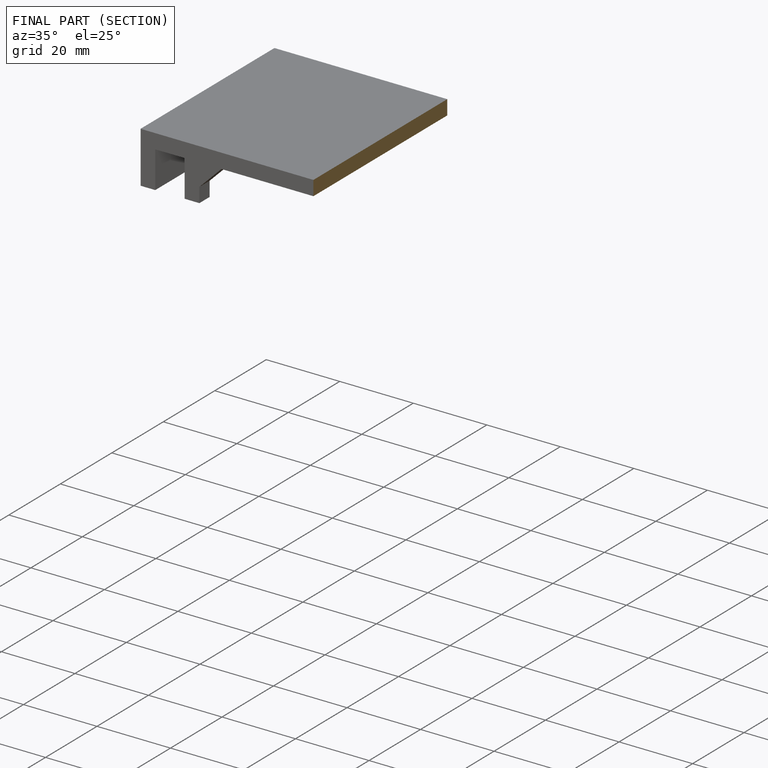
[diagram: finished part — half-section view (interior)]
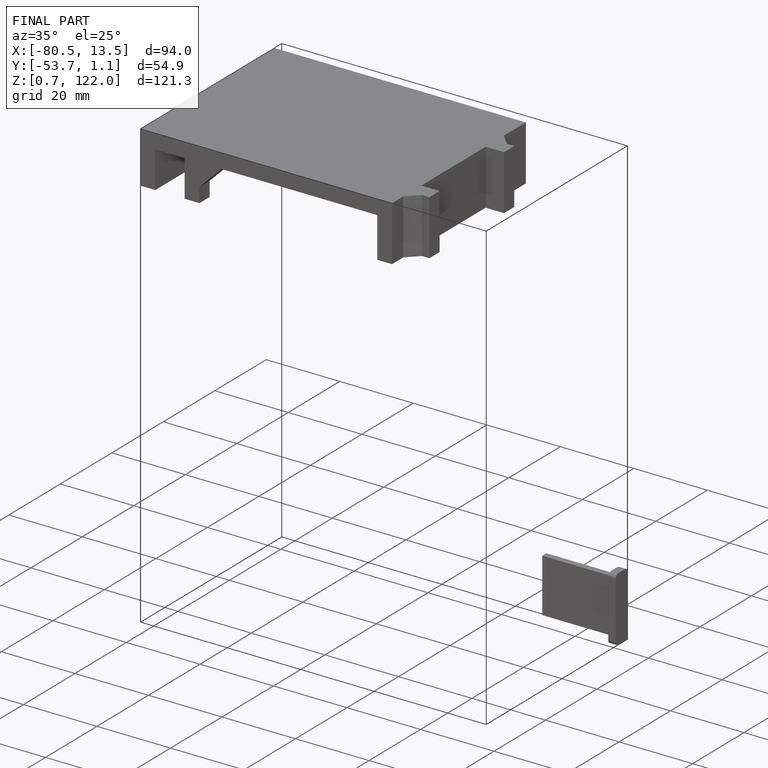
[diagram: finished part — iso view with bounding-box wireframe]
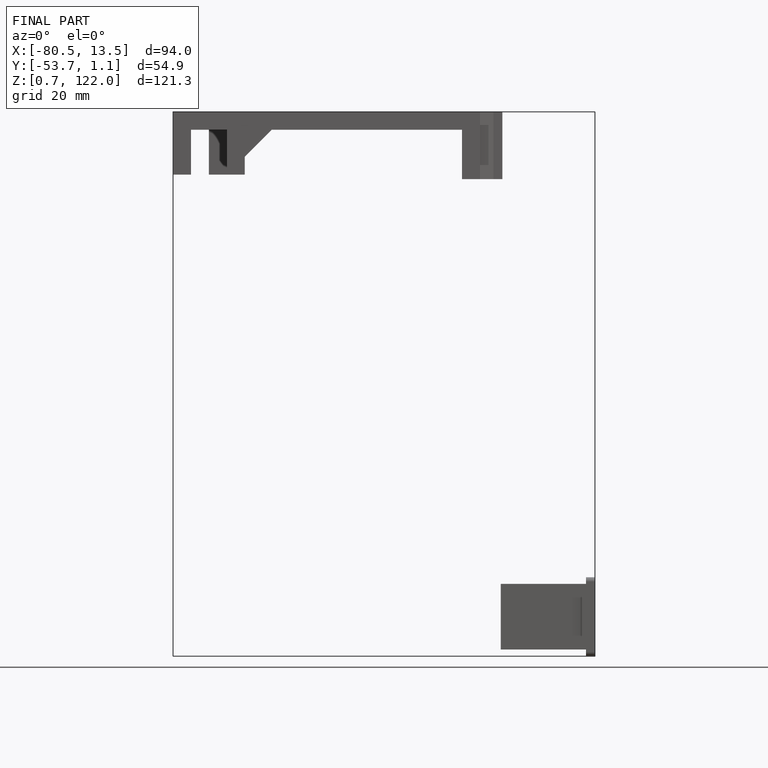
[diagram: finished part — front view with bounding-box wireframe]
